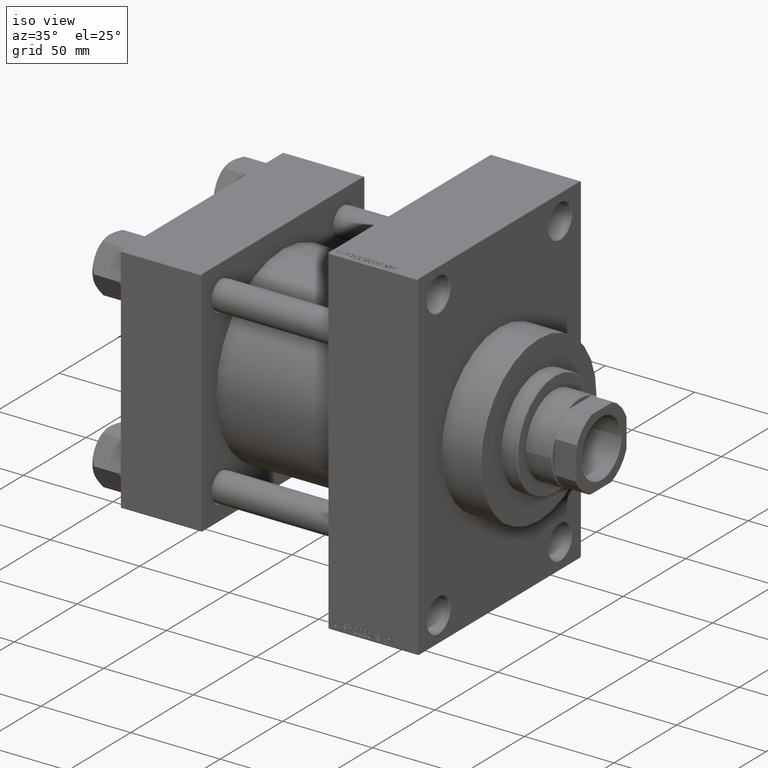
[diagram: clean part render]
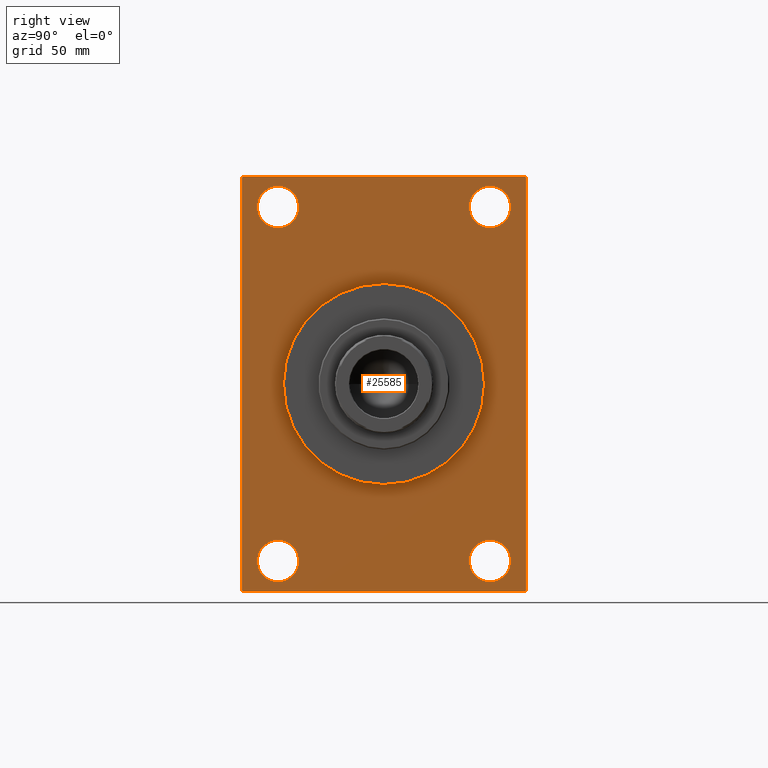
[diagram: tour spotlight — one face highlighted and labeled with its STEP entity id]
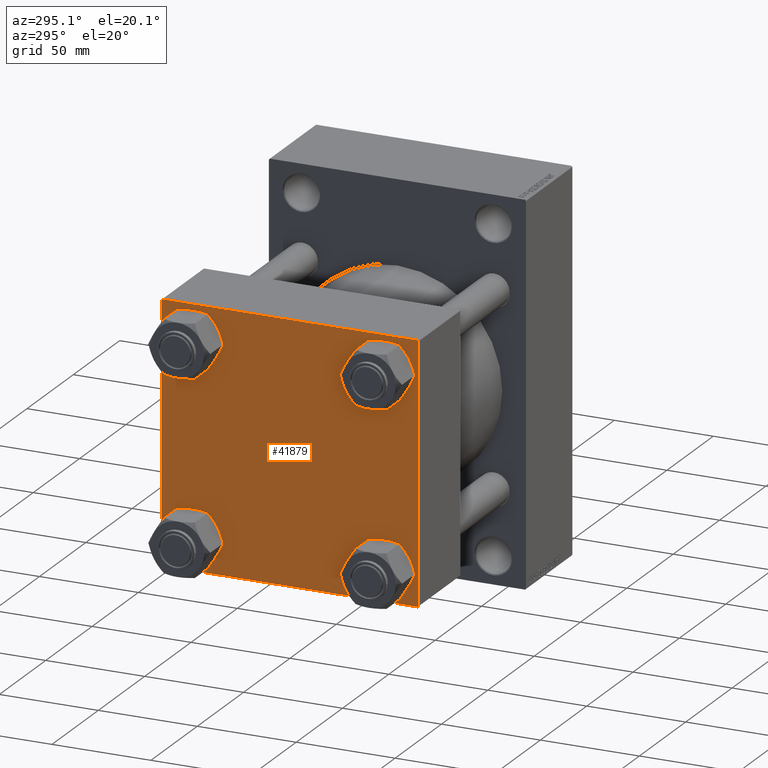
[diagram: tour spotlight — one face highlighted and labeled with its STEP entity id]
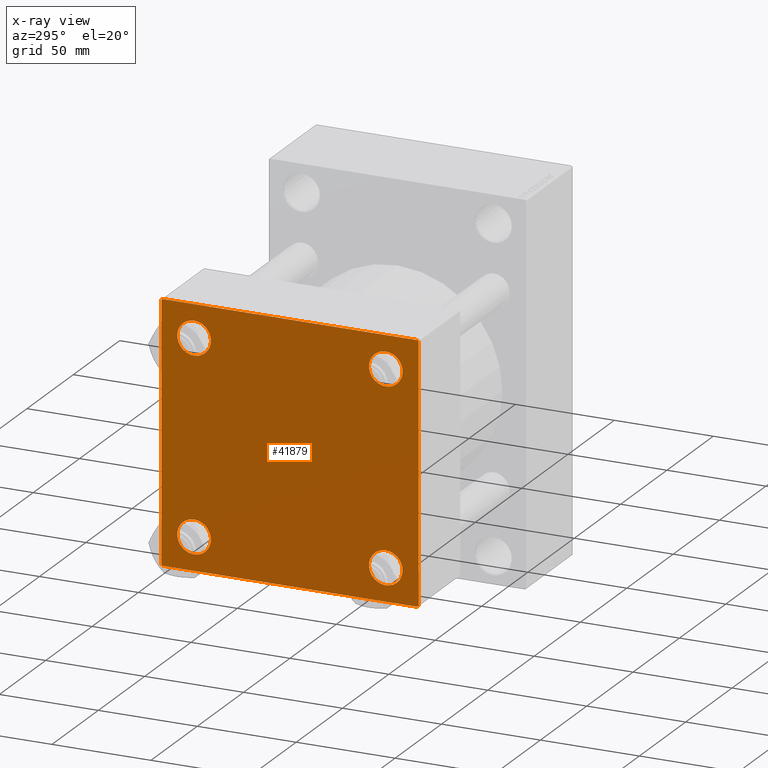
[diagram: x-ray of the same camera — body ghosted, this tour face saturated]
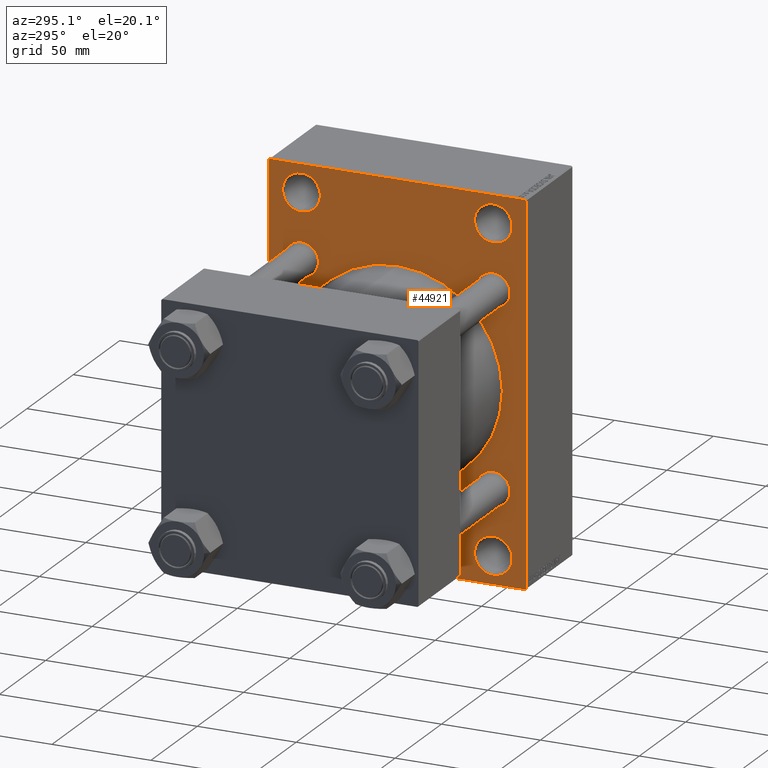
[diagram: tour spotlight — one face highlighted and labeled with its STEP entity id]
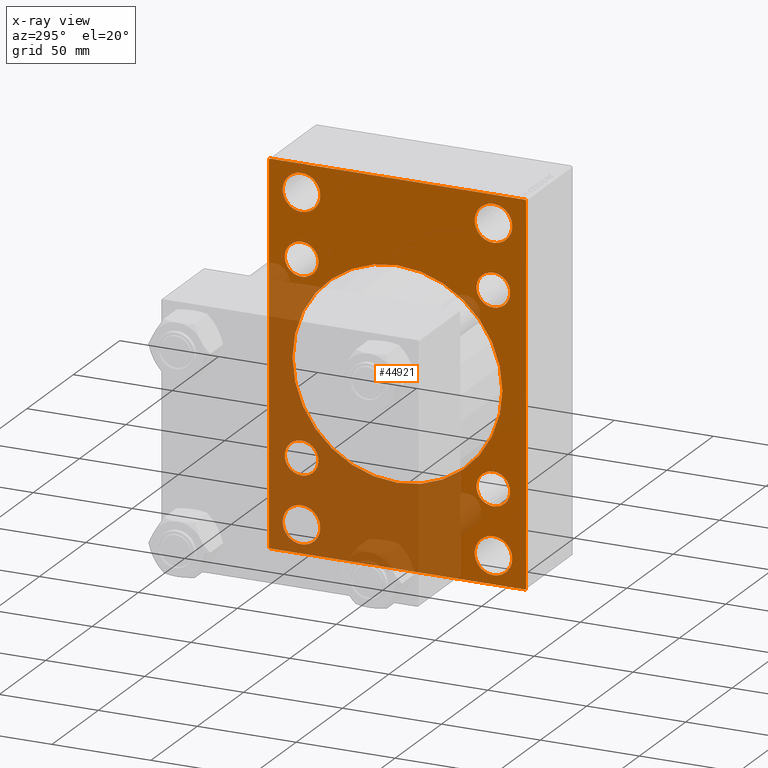
[diagram: x-ray of the same camera — body ghosted, this tour face saturated]
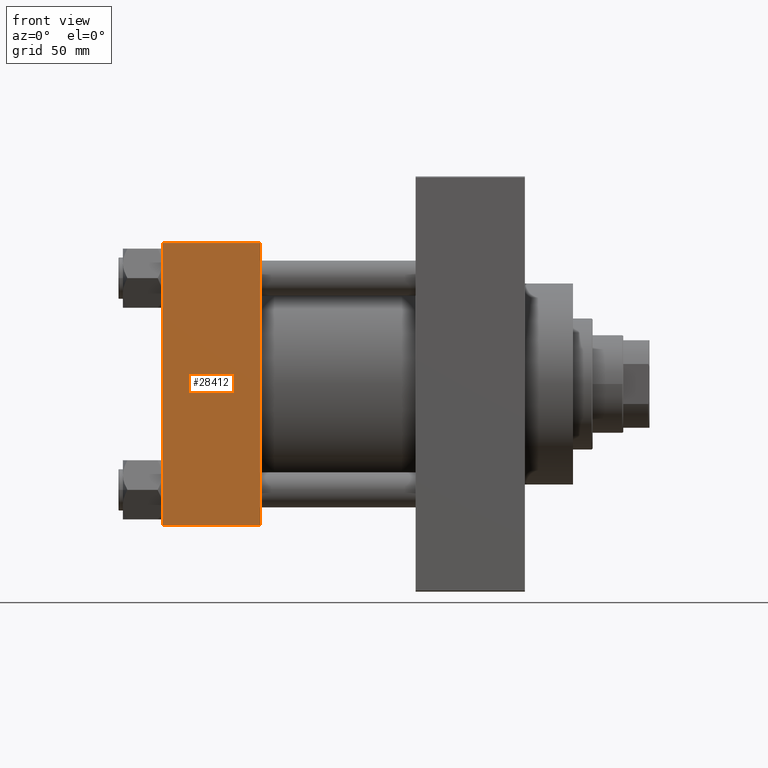
[diagram: tour spotlight — one face highlighted and labeled with its STEP entity id]
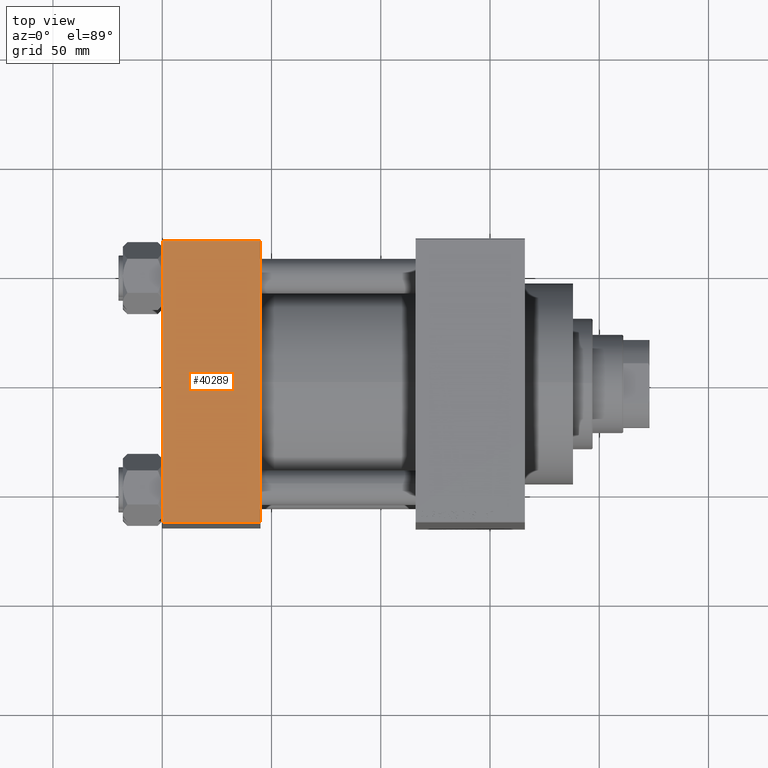
[diagram: tour spotlight — one face highlighted and labeled with its STEP entity id]
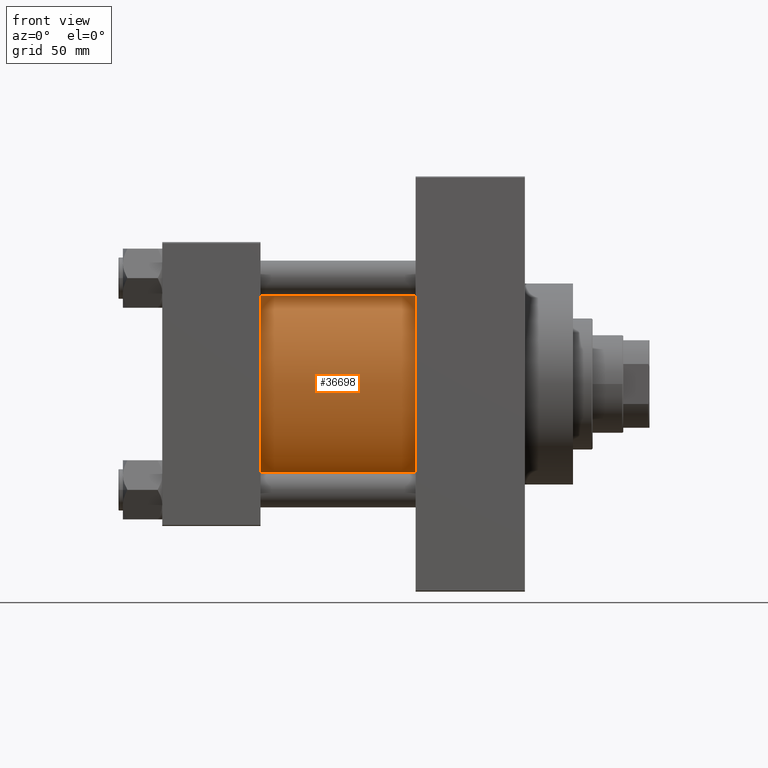
[diagram: tour spotlight — one face highlighted and labeled with its STEP entity id]
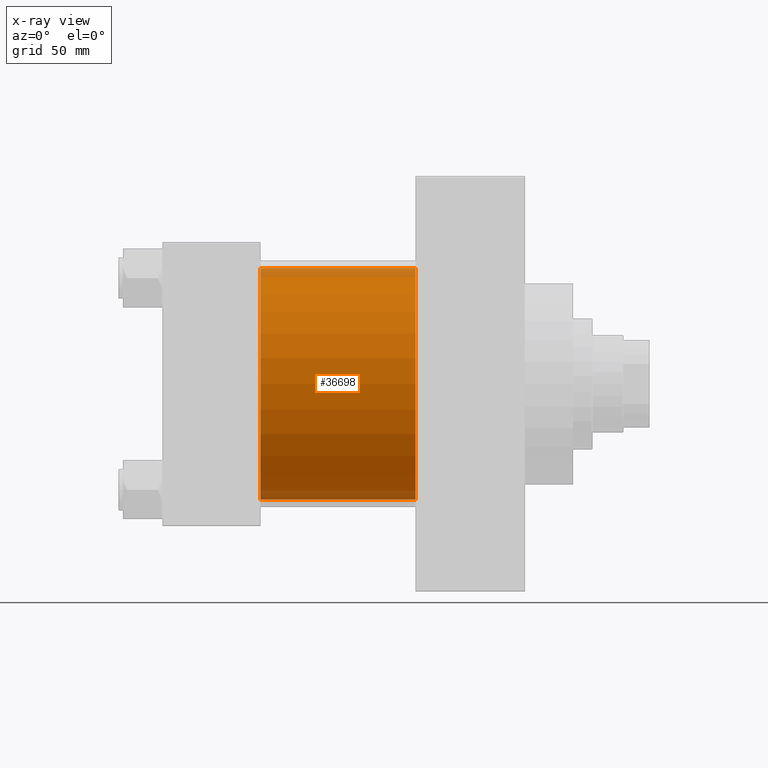
[diagram: x-ray of the same camera — body ghosted, this tour face saturated]
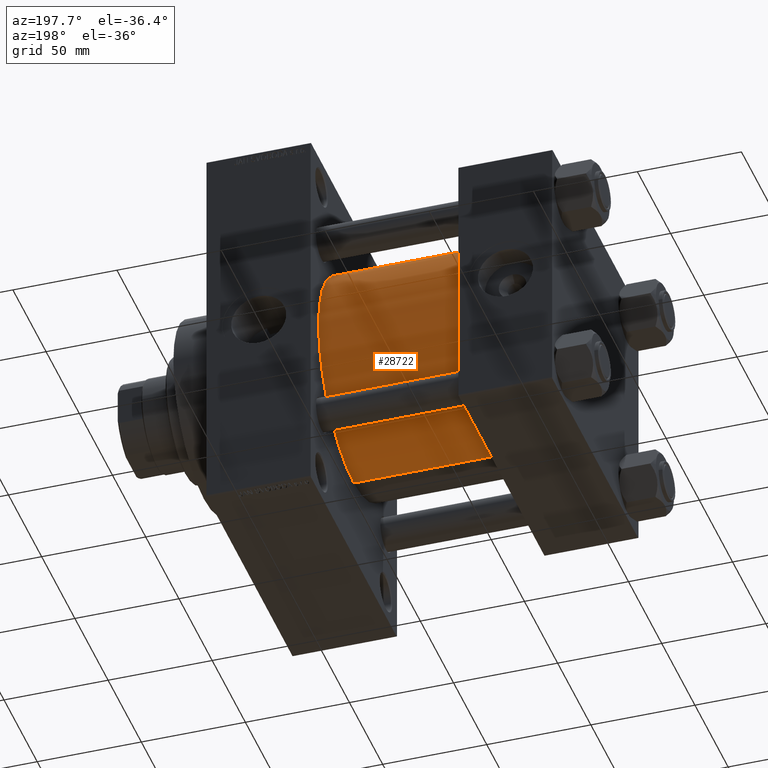
[diagram: tour spotlight — one face highlighted and labeled with its STEP entity id]
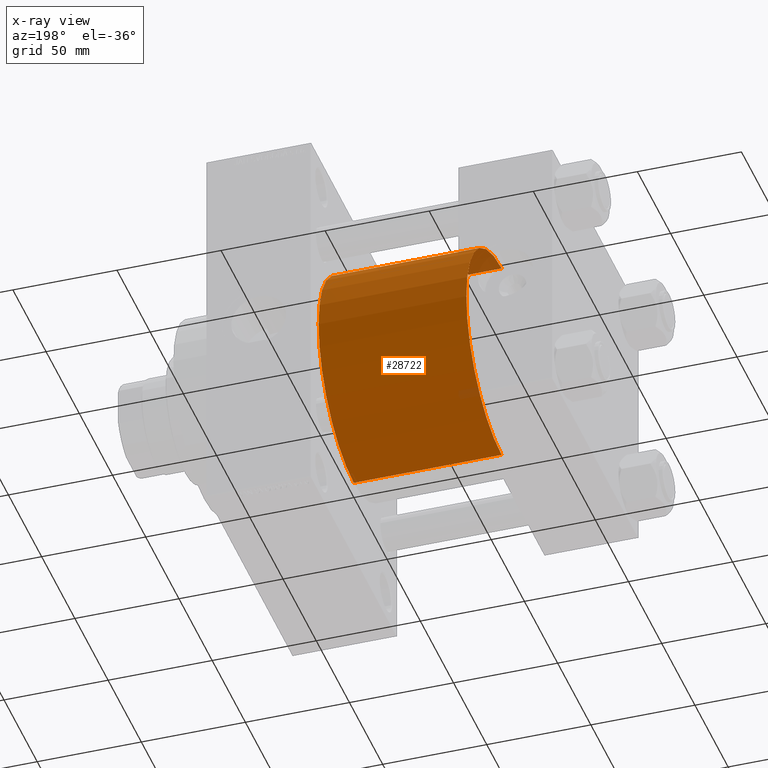
[diagram: x-ray of the same camera — body ghosted, this tour face saturated]
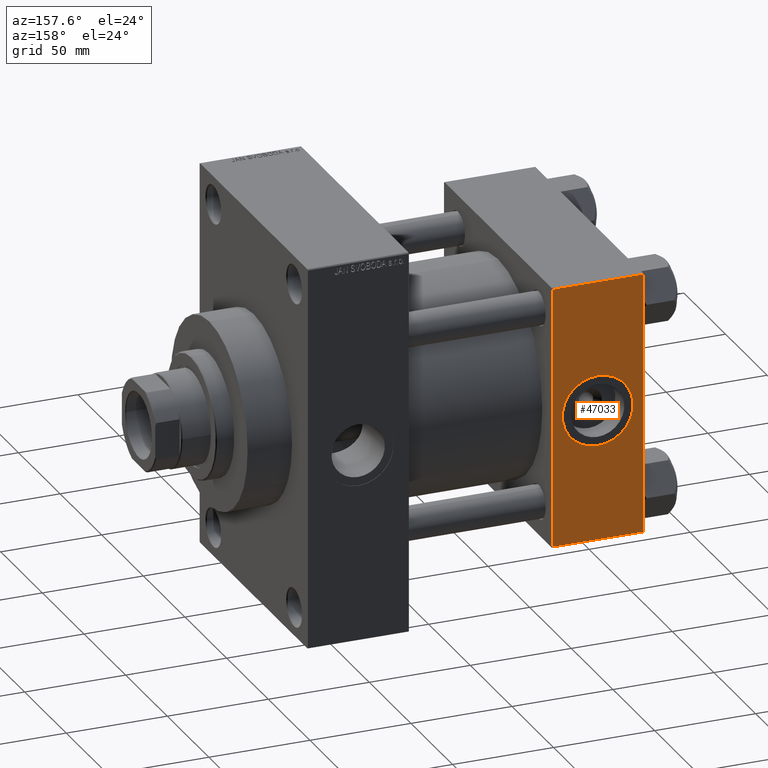
[diagram: tour spotlight — one face highlighted and labeled with its STEP entity id]
A machine part: a face-by-face anatomy tour. The part has 1152 B-rep faces; the first image is the clean iso view, then the 8 largest visible faces are spotlighted one at a time (largest first), each with its STEP entity span.

Face 1 — right view, entity #25585. In plain terms, the highlighted planar face has unit normal (-1, 0, 0).
Definition (entity closure, byte-faithful):
#88 = EDGE_CURVE ( 'NONE', #34553, #34006, #11857, .T. ) ;
#95 = ORIENTED_EDGE ( 'NONE', *, *, #5295, .T. ) ;
#711 = CARTESIAN_POINT ( 'NONE',  ( 165.9999999999999716, -64.50000000000002842, 94.99999999999997158 ) ) ;
#955 = DIRECTION ( 'NONE',  ( -1.000000000000000000, 0.000000000000000000, -0.000000000000000000 ) ) ;
#981 = DIRECTION ( 'NONE',  ( -1.000000000000000000, 0.000000000000000000, -0.000000000000000000 ) ) ;
#1147 = ORIENTED_EDGE ( 'NONE', *, *, #1502, .T. ) ;
#1502 = EDGE_CURVE ( 'NONE', #10934, #21464, #3899, .T. ) ;
#1513 = CARTESIAN_POINT ( 'NONE',  ( 165.9999999999999716, -48.49999999999999289, -81.00000000000001421 ) ) ;
#1711 = CARTESIAN_POINT ( 'NONE',  ( 165.9999999999999716, -65.00000000000001421, 94.49999999999997158 ) ) ;
#1908 = VERTEX_POINT ( 'NONE', #8160 ) ;
#2238 = CARTESIAN_POINT ( 'NONE',  ( 165.9999999999999716, -65.00000000000001421, -94.50000000000002842 ) ) ;
#2491 = FACE_BOUND ( 'NONE', #23513, .T. ) ;
#2520 = ORIENTED_EDGE ( 'NONE', *, *, #40611, .F. ) ;
#2609 = VERTEX_POINT ( 'NONE', #38890 ) ;
#2731 = DIRECTION ( 'NONE',  ( -0.000000000000000000, 0.7071067811865573427, 0.7071067811865378028 ) ) ;
#3073 = DIRECTION ( 'NONE',  ( 1.000000000000000000, 0.000000000000000000, 0.000000000000000000 ) ) ;
#3127 = VERTEX_POINT ( 'NONE', #2238 ) ;
#3593 = CIRCLE ( 'NONE', #11339, 9.500000000000063949 ) ;
#3899 = LINE ( 'NONE', #18602, #32669 ) ;
#4193 = EDGE_CURVE ( 'NONE', #42168, #47327, #23575, .T. ) ;
#4531 = AXIS2_PLACEMENT_3D ( 'NONE', #39790, #32546, #47255 ) ;
#5119 = DIRECTION ( 'NONE',  ( 0.000000000000000000, 0.000000000000000000, 1.000000000000000000 ) ) ;
#5295 = EDGE_CURVE ( 'NONE', #19798, #46957, #26887, .T. ) ;
#5446 = EDGE_CURVE ( 'NONE', #36640, #25618, #14280, .T. ) ;
#5709 = ORIENTED_EDGE ( 'NONE', *, *, #27113, .T. ) ;
#5920 = CARTESIAN_POINT ( 'NONE',  ( 165.9999999999999716, -64.50000000000001421, -95.00000000000002842 ) ) ;
#6737 = ORIENTED_EDGE ( 'NONE', *, *, #5446, .T. ) ;
#7107 = EDGE_CURVE ( 'NONE', #36640, #11937, #32504, .T. ) ;
#7383 = ORIENTED_EDGE ( 'NONE', *, *, #4193, .T. ) ;
#7713 = CARTESIAN_POINT ( 'NONE',  ( 165.9999999999999716, 48.50000000000000711, 81.00000000000000000 ) ) ;
#7810 = DIRECTION ( 'NONE',  ( 0.000000000000000000, 0.000000000000000000, 1.000000000000000000 ) ) ;
#7816 = ORIENTED_EDGE ( 'NONE', *, *, #21992, .F. ) ;
#7822 = DIRECTION ( 'NONE',  ( -0.000000000000000000, -0.7071067811865378028, -0.7071067811865573427 ) ) ;
#8131 = EDGE_CURVE ( 'NONE', #3127, #11937, #32046, .T. ) ;
#8160 = CARTESIAN_POINT ( 'NONE',  ( 165.9999999999999716, 48.50000000000000711, 71.49999999999994316 ) ) ;
#8289 = CARTESIAN_POINT ( 'NONE',  ( 165.9999999999999716, -48.50000000000000000, 71.49999999999994316 ) ) ;
#8540 = CARTESIAN_POINT ( 'NONE',  ( 165.9999999999999716, -65.00000000000001421, 94.49999999999997158 ) ) ;
#10111 = CARTESIAN_POINT ( 'NONE',  ( 165.9999999999999716, 64.99999999999997158, 94.99999999999997158 ) ) ;
#10390 = VECTOR ( 'NONE', #30547, 1000.000000000000000 ) ;
#10489 = AXIS2_PLACEMENT_3D ( 'NONE', #30954, #12620, #12865 ) ;
#10669 = CIRCLE ( 'NONE', #43789, 9.500000000000063949 ) ;
#10934 = VERTEX_POINT ( 'NONE', #33527 ) ;
#11083 = ORIENTED_EDGE ( 'NONE', *, *, #17266, .F. ) ;
#11339 = AXIS2_PLACEMENT_3D ( 'NONE', #7713, #11810, #37145 ) ;
#11742 = CARTESIAN_POINT ( 'NONE',  ( 165.9999999999999716, -65.00000000000001421, 94.99999999999997158 ) ) ;
#11810 = DIRECTION ( 'NONE',  ( -1.000000000000000000, 0.000000000000000000, -0.000000000000000000 ) ) ;
#11857 = CIRCLE ( 'NONE', #21113, 9.500000000000063949 ) ;
#11937 = VERTEX_POINT ( 'NONE', #5920 ) ;
#12004 = AXIS2_PLACEMENT_3D ( 'NONE', #15040, #30004, #7810 ) ;
#12205 = EDGE_CURVE ( 'NONE', #21464, #19798, #41580, .T. ) ;
#12237 = ORIENTED_EDGE ( 'NONE', *, *, #7107, .F. ) ;
#12620 = DIRECTION ( 'NONE',  ( -1.000000000000000000, 0.000000000000000000, -0.000000000000000000 ) ) ;
#12865 = DIRECTION ( 'NONE',  ( -0.000000000000000000, 0.000000000000000000, 1.000000000000000000 ) ) ;
#13337 = FACE_BOUND ( 'NONE', #24739, .T. ) ;
#13731 = DIRECTION ( 'NONE',  ( 0.000000000000000000, 0.7071067811865474617, -0.7071067811865474617 ) ) ;
#13922 = CARTESIAN_POINT ( 'NONE',  ( 165.9999999999999716, 0.000000000000000000, 0.000000000000000000 ) ) ;
#14280 = LINE ( 'NONE', #36467, #45938 ) ;
#14452 = CIRCLE ( 'NONE', #39083, 9.500000000000063949 ) ;
#14593 = ORIENTED_EDGE ( 'NONE', *, *, #88, .T. ) ;
#14633 = CARTESIAN_POINT ( 'NONE',  ( 165.9999999999999716, 48.50000000000000711, -71.49999999999995737 ) ) ;
#14699 = VERTEX_POINT ( 'NONE', #29228 ) ;
#15040 = CARTESIAN_POINT ( 'NONE',  ( 165.9999999999999716, -48.49999999999999289, -81.00000000000001421 ) ) ;
#15353 = LINE ( 'NONE', #11742, #10390 ) ;
#15674 = CARTESIAN_POINT ( 'NONE',  ( 165.9999999999999716, 64.49999999999998579, -95.00000000000001421 ) ) ;
#15752 = CARTESIAN_POINT ( 'NONE',  ( 165.9999999999999716, 48.50000000000000711, 90.50000000000007105 ) ) ;
#15913 = DIRECTION ( 'NONE',  ( 0.000000000000000000, 0.000000000000000000, 1.000000000000000000 ) ) ;
#16246 = CARTESIAN_POINT ( 'NONE',  ( 165.9999999999999716, 48.50000000000000711, -90.50000000000008527 ) ) ;
#16480 = ORIENTED_EDGE ( 'NONE', *, *, #12205, .T. ) ;
#17083 = VERTEX_POINT ( 'NONE', #15752 ) ;
#17134 = VERTEX_POINT ( 'NONE', #42745 ) ;
#17266 = EDGE_CURVE ( 'NONE', #10934, #25618, #39770, .T. ) ;
#17388 = VECTOR ( 'NONE', #43609, 1000.000000000000000 ) ;
#17586 = DIRECTION ( 'NONE',  ( 0.000000000000000000, 7.304098846218135653E-17, -1.000000000000000000 ) ) ;
#18184 = VECTOR ( 'NONE', #7822, 1000.000000000000000 ) ;
#18437 = CARTESIAN_POINT ( 'NONE',  ( 165.9999999999999716, 64.49999999999997158, 94.99999999999997158 ) ) ;
#18602 = CARTESIAN_POINT ( 'NONE',  ( 165.9999999999999716, 64.49999999999997158, 94.99999999999997158 ) ) ;
#18840 = DIRECTION ( 'NONE',  ( 0.000000000000000000, -0.7071067811865474617, 0.7071067811865474617 ) ) ;
#18992 = EDGE_CURVE ( 'NONE', #46957, #3127, #15353, .T. ) ;
#18993 = AXIS2_PLACEMENT_3D ( 'NONE', #13922, #3073, #28637 ) ;
#19798 = VERTEX_POINT ( 'NONE', #711 ) ;
#19915 = CIRCLE ( 'NONE', #28380, 9.500000000000063949 ) ;
#20585 = CARTESIAN_POINT ( 'NONE',  ( 165.9999999999999716, 64.99999999999998579, -94.50000000000002842 ) ) ;
#21113 = AXIS2_PLACEMENT_3D ( 'NONE', #26779, #981, #15913 ) ;
#21464 = VERTEX_POINT ( 'NONE', #18437 ) ;
#21663 = CARTESIAN_POINT ( 'NONE',  ( 165.9999999999999716, 64.99999999999998579, -95.00000000000001421 ) ) ;
#21992 = EDGE_CURVE ( 'NONE', #2609, #17134, #32847, .T. ) ;
#22518 = EDGE_CURVE ( 'NONE', #43683, #14699, #46688, .T. ) ;
#22942 = CARTESIAN_POINT ( 'NONE',  ( 165.9999999999999716, -48.50000000000000000, 81.00000000000000000 ) ) ;
#23400 = DIRECTION ( 'NONE',  ( 0.000000000000000000, 0.000000000000000000, 1.000000000000000000 ) ) ;
#23470 = VECTOR ( 'NONE', #17586, 1000.000000000000000 ) ;
#23513 = EDGE_LOOP ( 'NONE', ( #37123, #7383 ) ) ;
#23575 = CIRCLE ( 'NONE', #12004, 9.500000000000063949 ) ;
#23726 = FACE_BOUND ( 'NONE', #29053, .T. ) ;
#24173 = EDGE_LOOP ( 'NONE', ( #5709, #30195 ) ) ;
#24667 = CARTESIAN_POINT ( 'NONE',  ( 165.9999999999999716, -48.50000000000000000, 81.00000000000000000 ) ) ;
#24739 = EDGE_LOOP ( 'NONE', ( #14593, #27096 ) ) ;
#25134 = DIRECTION ( 'NONE',  ( 0.000000000000000000, 0.000000000000000000, 1.000000000000000000 ) ) ;
#25346 = DIRECTION ( 'NONE',  ( 1.000000000000000000, 0.000000000000000000, 0.000000000000000000 ) ) ;
#25585 = ADVANCED_FACE ( 'NONE', ( #34574, #2491, #13337, #31664, #23726, #45907 ), #35290, .F. ) ;
#25618 = VERTEX_POINT ( 'NONE', #20585 ) ;
#26146 = ORIENTED_EDGE ( 'NONE', *, *, #8131, .T. ) ;
#26389 = CARTESIAN_POINT ( 'NONE',  ( 165.9999999999999716, 64.99999999999997158, 94.99999999999997158 ) ) ;
#26779 = CARTESIAN_POINT ( 'NONE',  ( 165.9999999999999716, 48.50000000000000711, -81.00000000000001421 ) ) ;
#26887 = LINE ( 'NONE', #8540, #18184 ) ;
#26903 = ORIENTED_EDGE ( 'NONE', *, *, #22518, .T. ) ;
#27096 = ORIENTED_EDGE ( 'NONE', *, *, #44195, .T. ) ;
#27113 = EDGE_CURVE ( 'NONE', #1908, #17083, #3593, .T. ) ;
#27983 = CARTESIAN_POINT ( 'NONE',  ( 165.9999999999999716, -64.50000000000001421, -95.00000000000002842 ) ) ;
#28380 = AXIS2_PLACEMENT_3D ( 'NONE', #33494, #955, #33978 ) ;
#28637 = DIRECTION ( 'NONE',  ( 0.000000000000000000, 0.000000000000000000, -1.000000000000000000 ) ) ;
#28952 = EDGE_CURVE ( 'NONE', #14699, #43683, #14452, .T. ) ;
#28954 = CARTESIAN_POINT ( 'NONE',  ( 165.9999999999999716, 0.000000000000000000, 0.000000000000000000 ) ) ;
#29028 = ORIENTED_EDGE ( 'NONE', *, *, #28952, .T. ) ;
#29053 = EDGE_LOOP ( 'NONE', ( #2520, #7816 ) ) ;
#29228 = CARTESIAN_POINT ( 'NONE',  ( 165.9999999999999716, -48.50000000000000000, 90.50000000000007105 ) ) ;
#30004 = DIRECTION ( 'NONE',  ( -1.000000000000000000, 0.000000000000000000, -0.000000000000000000 ) ) ;
#30184 = EDGE_CURVE ( 'NONE', #47327, #42168, #10669, .T. ) ;
#30195 = ORIENTED_EDGE ( 'NONE', *, *, #30393, .T. ) ;
#30393 = EDGE_CURVE ( 'NONE', #17083, #1908, #39930, .T. ) ;
#30547 = DIRECTION ( 'NONE',  ( 0.000000000000000000, 0.000000000000000000, -1.000000000000000000 ) ) ;
#30900 = EDGE_LOOP ( 'NONE', ( #26903, #29028 ) ) ;
#30954 = CARTESIAN_POINT ( 'NONE',  ( 165.9999999999999716, 0.000000000000000000, 0.000000000000000000 ) ) ;
#31045 = CARTESIAN_POINT ( 'NONE',  ( 165.9999999999999716, -48.49999999999999289, -71.49999999999995737 ) ) ;
#31617 = DIRECTION ( 'NONE',  ( -1.000000000000000000, 0.000000000000000000, -0.000000000000000000 ) ) ;
#31664 = FACE_BOUND ( 'NONE', #24173, .T. ) ;
#32046 = LINE ( 'NONE', #27983, #40532 ) ;
#32504 = LINE ( 'NONE', #21663, #17388 ) ;
#32546 = DIRECTION ( 'NONE',  ( -1.000000000000000000, 0.000000000000000000, -0.000000000000000000 ) ) ;
#32669 = VECTOR ( 'NONE', #18840, 1000.000000000000114 ) ;
#32847 = CIRCLE ( 'NONE', #18993, 46.00000000000000000 ) ;
#33494 = CARTESIAN_POINT ( 'NONE',  ( 165.9999999999999716, 48.50000000000000711, -81.00000000000001421 ) ) ;
#33527 = CARTESIAN_POINT ( 'NONE',  ( 165.9999999999999716, 64.99999999999997158, 94.49999999999997158 ) ) ;
#33978 = DIRECTION ( 'NONE',  ( 0.000000000000000000, 0.000000000000000000, 1.000000000000000000 ) ) ;
#34006 = VERTEX_POINT ( 'NONE', #14633 ) ;
#34553 = VERTEX_POINT ( 'NONE', #16246 ) ;
#34574 = FACE_BOUND ( 'NONE', #30900, .T. ) ;
#35290 = PLANE ( 'NONE',  #10489 ) ;
#35948 = AXIS2_PLACEMENT_3D ( 'NONE', #28954, #25346, #46817 ) ;
#36456 = DIRECTION ( 'NONE',  ( -1.000000000000000000, 0.000000000000000000, -0.000000000000000000 ) ) ;
#36467 = CARTESIAN_POINT ( 'NONE',  ( 165.9999999999999716, 64.99999999999998579, -94.50000000000002842 ) ) ;
#36640 = VERTEX_POINT ( 'NONE', #15674 ) ;
#37123 = ORIENTED_EDGE ( 'NONE', *, *, #30184, .T. ) ;
#37145 = DIRECTION ( 'NONE',  ( 0.000000000000000000, 0.000000000000000000, 1.000000000000000000 ) ) ;
#37934 = VECTOR ( 'NONE', #41095, 1000.000000000000000 ) ;
#38021 = EDGE_LOOP ( 'NONE', ( #42544, #26146, #12237, #6737, #11083, #1147, #16480, #95 ) ) ;
#38104 = DIRECTION ( 'NONE',  ( -1.000000000000000000, 0.000000000000000000, -0.000000000000000000 ) ) ;
#38890 = CARTESIAN_POINT ( 'NONE',  ( 165.9999999999999716, 5.633375276077824704E-15, -46.00000000000000000 ) ) ;
#39083 = AXIS2_PLACEMENT_3D ( 'NONE', #24667, #36456, #25134 ) ;
#39770 = LINE ( 'NONE', #10111, #23470 ) ;
#39790 = CARTESIAN_POINT ( 'NONE',  ( 165.9999999999999716, 48.50000000000000711, 81.00000000000000000 ) ) ;
#39930 = CIRCLE ( 'NONE', #4531, 9.500000000000063949 ) ;
#40532 = VECTOR ( 'NONE', #13731, 1000.000000000000114 ) ;
#40611 = EDGE_CURVE ( 'NONE', #17134, #2609, #45977, .T. ) ;
#41095 = DIRECTION ( 'NONE',  ( 0.000000000000000000, -1.000000000000000000, 0.000000000000000000 ) ) ;
#41580 = LINE ( 'NONE', #26389, #37934 ) ;
#42168 = VERTEX_POINT ( 'NONE', #31045 ) ;
#42544 = ORIENTED_EDGE ( 'NONE', *, *, #18992, .T. ) ;
#42745 = CARTESIAN_POINT ( 'NONE',  ( 165.9999999999999716, 0.000000000000000000, 46.00000000000000000 ) ) ;
#43609 = DIRECTION ( 'NONE',  ( 0.000000000000000000, -1.000000000000000000, -1.067522139062650425E-16 ) ) ;
#43683 = VERTEX_POINT ( 'NONE', #8289 ) ;
#43789 = AXIS2_PLACEMENT_3D ( 'NONE', #1513, #31617, #5119 ) ;
#44195 = EDGE_CURVE ( 'NONE', #34006, #34553, #19915, .T. ) ;
#44390 = AXIS2_PLACEMENT_3D ( 'NONE', #22942, #38104, #23400 ) ;
#45907 = FACE_OUTER_BOUND ( 'NONE', #38021, .T. ) ;
#45938 = VECTOR ( 'NONE', #2731, 1000.000000000000000 ) ;
#45977 = CIRCLE ( 'NONE', #35948, 46.00000000000000000 ) ;
#46002 = CARTESIAN_POINT ( 'NONE',  ( 165.9999999999999716, -48.49999999999999289, -90.50000000000008527 ) ) ;
#46688 = CIRCLE ( 'NONE', #44390, 9.500000000000063949 ) ;
#46817 = DIRECTION ( 'NONE',  ( 0.000000000000000000, 0.000000000000000000, -1.000000000000000000 ) ) ;
#46957 = VERTEX_POINT ( 'NONE', #1711 ) ;
#47255 = DIRECTION ( 'NONE',  ( 0.000000000000000000, 0.000000000000000000, 1.000000000000000000 ) ) ;
#47327 = VERTEX_POINT ( 'NONE', #46002 ) ;

Face 2 — auxiliary view, entity #41879. An x-ray twin of the same camera follows (body ghosted, this face saturated) — the face is partly hidden behind the body. In plain terms, the highlighted planar face has unit normal (-1, 0, 0).
Definition (entity closure, byte-faithful):
#122 = ORIENTED_EDGE ( 'NONE', *, *, #23657, .F. ) ;
#156 = CARTESIAN_POINT ( 'NONE',  ( 0.000000000000000000, -48.44999999999999574, -56.95000000000003837 ) ) ;
#199 = AXIS2_PLACEMENT_3D ( 'NONE', #9330, #46461, #13658 ) ;
#328 = EDGE_LOOP ( 'NONE', ( #9822, #27246 ) ) ;
#412 = DIRECTION ( 'NONE',  ( 1.000000000000000000, -0.000000000000000000, 0.000000000000000000 ) ) ;
#581 = FACE_OUTER_BOUND ( 'NONE', #38716, .T. ) ;
#967 = VERTEX_POINT ( 'NONE', #10570 ) ;
#1126 = VERTEX_POINT ( 'NONE', #20675 ) ;
#1240 = AXIS2_PLACEMENT_3D ( 'NONE', #19678, #18971, #45000 ) ;
#2139 = ORIENTED_EDGE ( 'NONE', *, *, #7952, .T. ) ;
#2575 = ORIENTED_EDGE ( 'NONE', *, *, #28488, .T. ) ;
#3348 = DIRECTION ( 'NONE',  ( 0.000000000000000000, 0.7071067811865474617, -0.7071067811865474617 ) ) ;
#4324 = CIRCLE ( 'NONE', #1240, 8.500000000000007105 ) ;
#4874 = VERTEX_POINT ( 'NONE', #41530 ) ;
#4893 = EDGE_CURVE ( 'NONE', #38133, #6228, #31305, .T. ) ;
#4915 = DIRECTION ( 'NONE',  ( 0.000000000000000000, 0.000000000000000000, 1.000000000000000000 ) ) ;
#5254 = CARTESIAN_POINT ( 'NONE',  ( 0.000000000000000000, -65.00000000000000000, 64.50000000000000000 ) ) ;
#6228 = VERTEX_POINT ( 'NONE', #6699 ) ;
#6443 = DIRECTION ( 'NONE',  ( 1.000000000000000000, -0.000000000000000000, 0.000000000000000000 ) ) ;
#6543 = EDGE_LOOP ( 'NONE', ( #38751, #30762 ) ) ;
#6699 = CARTESIAN_POINT ( 'NONE',  ( 0.000000000000000000, 48.45000000000000995, 56.95000000000002416 ) ) ;
#7475 = AXIS2_PLACEMENT_3D ( 'NONE', #8027, #15268, #23237 ) ;
#7774 = DIRECTION ( 'NONE',  ( -0.000000000000000000, 0.7071067811865672237, 0.7071067811865279218 ) ) ;
#7784 = AXIS2_PLACEMENT_3D ( 'NONE', #37159, #18827, #33529 ) ;
#7823 = LINE ( 'NONE', #22547, #29128 ) ;
#7896 = CARTESIAN_POINT ( 'NONE',  ( 0.000000000000000000, 48.45000000000000995, -56.95000000000002416 ) ) ;
#7952 = EDGE_CURVE ( 'NONE', #967, #27016, #15688, .T. ) ;
#8027 = CARTESIAN_POINT ( 'NONE',  ( 0.000000000000000000, 0.000000000000000000, 0.000000000000000000 ) ) ;
#8385 = CARTESIAN_POINT ( 'NONE',  ( 0.000000000000000000, -48.44999999999999574, 48.45000000000003126 ) ) ;
#8511 = PLANE ( 'NONE',  #7475 ) ;
#8964 = VECTOR ( 'NONE', #18207, 1000.000000000000114 ) ;
#9330 = CARTESIAN_POINT ( 'NONE',  ( 0.000000000000000000, -48.44999999999999574, 48.45000000000003126 ) ) ;
#9479 = EDGE_CURVE ( 'NONE', #41156, #4874, #15003, .T. ) ;
#9822 = ORIENTED_EDGE ( 'NONE', *, *, #11482, .T. ) ;
#9998 = VERTEX_POINT ( 'NONE', #46279 ) ;
#10570 = CARTESIAN_POINT ( 'NONE',  ( 0.000000000000000000, 65.00000000000000000, 64.49999999999998579 ) ) ;
#11131 = CARTESIAN_POINT ( 'NONE',  ( 0.000000000000000000, 64.49999999999997158, 65.00000000000001421 ) ) ;
#11169 = AXIS2_PLACEMENT_3D ( 'NONE', #44944, #37953, #4915 ) ;
#11232 = EDGE_CURVE ( 'NONE', #22095, #45481, #32458, .T. ) ;
#11375 = CIRCLE ( 'NONE', #44488, 8.500000000000007105 ) ;
#11482 = EDGE_CURVE ( 'NONE', #45481, #22095, #40987, .T. ) ;
#11696 = AXIS2_PLACEMENT_3D ( 'NONE', #8385, #12245, #34187 ) ;
#11820 = CARTESIAN_POINT ( 'NONE',  ( 0.000000000000000000, -65.00000000000000000, 65.00000000000000000 ) ) ;
#12085 = DIRECTION ( 'NONE',  ( 0.000000000000000000, 0.000000000000000000, -1.000000000000000000 ) ) ;
#12245 = DIRECTION ( 'NONE',  ( 1.000000000000000000, -0.000000000000000000, 0.000000000000000000 ) ) ;
#13658 = DIRECTION ( 'NONE',  ( 0.000000000000000000, 0.000000000000000000, 1.000000000000000000 ) ) ;
#14182 = CARTESIAN_POINT ( 'NONE',  ( 0.000000000000000000, 48.45000000000000995, 39.95000000000000284 ) ) ;
#14345 = EDGE_CURVE ( 'NONE', #9998, #37979, #26127, .T. ) ;
#15003 = LINE ( 'NONE', #18636, #16299 ) ;
#15268 = DIRECTION ( 'NONE',  ( -1.000000000000000000, 0.000000000000000000, -0.000000000000000000 ) ) ;
#15688 = LINE ( 'NONE', #41264, #42045 ) ;
#15866 = DIRECTION ( 'NONE',  ( 0.000000000000000000, -1.000000000000000000, -1.067522139062650425E-16 ) ) ;
#16299 = VECTOR ( 'NONE', #7774, 1000.000000000000000 ) ;
#17917 = CARTESIAN_POINT ( 'NONE',  ( 0.000000000000000000, 65.00000000000000000, -64.99999999999998579 ) ) ;
#18207 = DIRECTION ( 'NONE',  ( -0.000000000000000000, -0.7071067811865474617, -0.7071067811865474617 ) ) ;
#18345 = EDGE_CURVE ( 'NONE', #6228, #38133, #27360, .T. ) ;
#18636 = CARTESIAN_POINT ( 'NONE',  ( -0.000000000000000000, -64.74999999999819522, 64.75000000000179057 ) ) ;
#18827 = DIRECTION ( 'NONE',  ( 1.000000000000000000, -0.000000000000000000, 0.000000000000000000 ) ) ;
#18971 = DIRECTION ( 'NONE',  ( 1.000000000000000000, -0.000000000000000000, 0.000000000000000000 ) ) ;
#19678 = CARTESIAN_POINT ( 'NONE',  ( 0.000000000000000000, -48.44999999999999574, -48.45000000000003126 ) ) ;
#19728 = EDGE_CURVE ( 'NONE', #43948, #967, #28910, .T. ) ;
#19780 = CIRCLE ( 'NONE', #40565, 8.500000000000007105 ) ;
#19872 = ORIENTED_EDGE ( 'NONE', *, *, #36691, .T. ) ;
#20675 = CARTESIAN_POINT ( 'NONE',  ( 0.000000000000000000, -65.00000000000000000, -64.49999999999991473 ) ) ;
#20697 = EDGE_LOOP ( 'NONE', ( #2575, #39445 ) ) ;
#20877 = ORIENTED_EDGE ( 'NONE', *, *, #14345, .T. ) ;
#21461 = ORIENTED_EDGE ( 'NONE', *, *, #22120, .T. ) ;
#21796 = VECTOR ( 'NONE', #40834, 1000.000000000000000 ) ;
#22095 = VERTEX_POINT ( 'NONE', #30307 ) ;
#22120 = EDGE_CURVE ( 'NONE', #27016, #9998, #24260, .T. ) ;
#22547 = CARTESIAN_POINT ( 'NONE',  ( 0.000000000000000000, -64.75000000000176215, -64.74999999999816680 ) ) ;
#23237 = DIRECTION ( 'NONE',  ( -0.000000000000000000, 0.000000000000000000, 1.000000000000000000 ) ) ;
#23522 = VERTEX_POINT ( 'NONE', #47469 ) ;
#23657 = EDGE_CURVE ( 'NONE', #43948, #4874, #31046, .T. ) ;
#24260 = LINE ( 'NONE', #33155, #8964 ) ;
#24322 = EDGE_LOOP ( 'NONE', ( #19872, #26264 ) ) ;
#24376 = DIRECTION ( 'NONE',  ( 1.000000000000000000, -0.000000000000000000, 0.000000000000000000 ) ) ;
#24779 = EDGE_CURVE ( 'NONE', #42350, #23522, #4324, .T. ) ;
#25302 = CARTESIAN_POINT ( 'NONE',  ( 0.000000000000000000, 64.74999999999998579, 64.74999999999998579 ) ) ;
#26127 = LINE ( 'NONE', #17917, #21796 ) ;
#26264 = ORIENTED_EDGE ( 'NONE', *, *, #26369, .T. ) ;
#26369 = EDGE_CURVE ( 'NONE', #36051, #38217, #19780, .T. ) ;
#27004 = ORIENTED_EDGE ( 'NONE', *, *, #40826, .F. ) ;
#27016 = VERTEX_POINT ( 'NONE', #32318 ) ;
#27246 = ORIENTED_EDGE ( 'NONE', *, *, #11232, .T. ) ;
#27360 = CIRCLE ( 'NONE', #11169, 8.500000000000007105 ) ;
#28142 = ORIENTED_EDGE ( 'NONE', *, *, #29672, .T. ) ;
#28488 = EDGE_CURVE ( 'NONE', #23522, #42350, #11375, .T. ) ;
#28910 = LINE ( 'NONE', #25302, #35836 ) ;
#29128 = VECTOR ( 'NONE', #30729, 1000.000000000000000 ) ;
#29586 = CARTESIAN_POINT ( 'NONE',  ( 0.000000000000000000, 48.45000000000000995, 48.45000000000001705 ) ) ;
#29672 = EDGE_CURVE ( 'NONE', #37979, #1126, #7823, .T. ) ;
#29756 = AXIS2_PLACEMENT_3D ( 'NONE', #29586, #24376, #31831 ) ;
#30218 = FACE_BOUND ( 'NONE', #6543, .T. ) ;
#30307 = CARTESIAN_POINT ( 'NONE',  ( 0.000000000000000000, -48.44999999999999574, 39.95000000000001705 ) ) ;
#30575 = ORIENTED_EDGE ( 'NONE', *, *, #19728, .T. ) ;
#30729 = DIRECTION ( 'NONE',  ( 0.000000000000000000, -0.7071067811865279218, 0.7071067811865671127 ) ) ;
#30762 = ORIENTED_EDGE ( 'NONE', *, *, #4893, .T. ) ;
#31046 = LINE ( 'NONE', #41445, #31226 ) ;
#31226 = VECTOR ( 'NONE', #15866, 1000.000000000000000 ) ;
#31305 = CIRCLE ( 'NONE', #29756, 8.500000000000007105 ) ;
#31831 = DIRECTION ( 'NONE',  ( 0.000000000000000000, 0.000000000000000000, 1.000000000000000000 ) ) ;
#32318 = CARTESIAN_POINT ( 'NONE',  ( 0.000000000000000000, 65.00000000000000000, -64.49999999999995737 ) ) ;
#32458 = CIRCLE ( 'NONE', #11696, 8.500000000000007105 ) ;
#33155 = CARTESIAN_POINT ( 'NONE',  ( 0.000000000000000000, 64.74999999999997158, -64.74999999999997158 ) ) ;
#33529 = DIRECTION ( 'NONE',  ( 0.000000000000000000, 0.000000000000000000, 1.000000000000000000 ) ) ;
#33722 = CARTESIAN_POINT ( 'NONE',  ( 0.000000000000000000, 48.45000000000000995, -39.95000000000000284 ) ) ;
#33956 = CIRCLE ( 'NONE', #7784, 8.500000000000007105 ) ;
#34187 = DIRECTION ( 'NONE',  ( 0.000000000000000000, 0.000000000000000000, 1.000000000000000000 ) ) ;
#35836 = VECTOR ( 'NONE', #3348, 1000.000000000000114 ) ;
#36051 = VERTEX_POINT ( 'NONE', #7896 ) ;
#36691 = EDGE_CURVE ( 'NONE', #38217, #36051, #33956, .T. ) ;
#37158 = DIRECTION ( 'NONE',  ( 0.000000000000000000, 0.000000000000000000, -1.000000000000000000 ) ) ;
#37159 = CARTESIAN_POINT ( 'NONE',  ( 0.000000000000000000, 48.45000000000000995, -48.45000000000001705 ) ) ;
#37303 = CARTESIAN_POINT ( 'NONE',  ( 0.000000000000000000, -48.44999999999999574, -48.45000000000003126 ) ) ;
#37784 = DIRECTION ( 'NONE',  ( 0.000000000000000000, 0.000000000000000000, 1.000000000000000000 ) ) ;
#37953 = DIRECTION ( 'NONE',  ( 1.000000000000000000, -0.000000000000000000, 0.000000000000000000 ) ) ;
#37979 = VERTEX_POINT ( 'NONE', #44871 ) ;
#38133 = VERTEX_POINT ( 'NONE', #14182 ) ;
#38217 = VERTEX_POINT ( 'NONE', #33722 ) ;
#38716 = EDGE_LOOP ( 'NONE', ( #2139, #21461, #20877, #28142, #27004, #45605, #122, #30575 ) ) ;
#38751 = ORIENTED_EDGE ( 'NONE', *, *, #18345, .T. ) ;
#39018 = VECTOR ( 'NONE', #37158, 1000.000000000000000 ) ;
#39445 = ORIENTED_EDGE ( 'NONE', *, *, #24779, .T. ) ;
#40565 = AXIS2_PLACEMENT_3D ( 'NONE', #47195, #6443, #46499 ) ;
#40826 = EDGE_CURVE ( 'NONE', #41156, #1126, #44141, .T. ) ;
#40834 = DIRECTION ( 'NONE',  ( 0.000000000000000000, -1.000000000000000000, -1.067522139062650425E-16 ) ) ;
#40987 = CIRCLE ( 'NONE', #199, 8.500000000000007105 ) ;
#41156 = VERTEX_POINT ( 'NONE', #5254 ) ;
#41264 = CARTESIAN_POINT ( 'NONE',  ( 0.000000000000000000, 65.00000000000000000, 65.00000000000001421 ) ) ;
#41445 = CARTESIAN_POINT ( 'NONE',  ( 0.000000000000000000, 65.00000000000000000, 65.00000000000001421 ) ) ;
#41530 = CARTESIAN_POINT ( 'NONE',  ( 0.000000000000000000, -64.49999999999997158, 65.00000000000000000 ) ) ;
#41560 = FACE_BOUND ( 'NONE', #328, .T. ) ;
#41879 = ADVANCED_FACE ( 'NONE', ( #41560, #45408, #44930, #30218, #581 ), #8511, .T. ) ;
#42045 = VECTOR ( 'NONE', #12085, 1000.000000000000000 ) ;
#42310 = CARTESIAN_POINT ( 'NONE',  ( 0.000000000000000000, -48.44999999999999574, 56.95000000000003837 ) ) ;
#42350 = VERTEX_POINT ( 'NONE', #156 ) ;
#43948 = VERTEX_POINT ( 'NONE', #11131 ) ;
#44141 = LINE ( 'NONE', #11820, #39018 ) ;
#44488 = AXIS2_PLACEMENT_3D ( 'NONE', #37303, #412, #37784 ) ;
#44871 = CARTESIAN_POINT ( 'NONE',  ( 0.000000000000000000, -64.49999999999994316, -65.00000000000000000 ) ) ;
#44930 = FACE_BOUND ( 'NONE', #24322, .T. ) ;
#44944 = CARTESIAN_POINT ( 'NONE',  ( 0.000000000000000000, 48.45000000000000995, 48.45000000000001705 ) ) ;
#45000 = DIRECTION ( 'NONE',  ( 0.000000000000000000, 0.000000000000000000, 1.000000000000000000 ) ) ;
#45408 = FACE_BOUND ( 'NONE', #20697, .T. ) ;
#45481 = VERTEX_POINT ( 'NONE', #42310 ) ;
#45605 = ORIENTED_EDGE ( 'NONE', *, *, #9479, .T. ) ;
#46279 = CARTESIAN_POINT ( 'NONE',  ( 0.000000000000000000, 64.49999999999997158, -64.99999999999998579 ) ) ;
#46461 = DIRECTION ( 'NONE',  ( 1.000000000000000000, -0.000000000000000000, 0.000000000000000000 ) ) ;
#46499 = DIRECTION ( 'NONE',  ( 0.000000000000000000, 0.000000000000000000, 1.000000000000000000 ) ) ;
#47195 = CARTESIAN_POINT ( 'NONE',  ( 0.000000000000000000, 48.45000000000000995, -48.45000000000001705 ) ) ;
#47469 = CARTESIAN_POINT ( 'NONE',  ( 0.000000000000000000, -48.44999999999999574, -39.95000000000001705 ) ) ;

Face 3 — auxiliary view, entity #44921. An x-ray twin of the same camera follows (body ghosted, this face saturated) — the face is partly hidden behind the body. In plain terms, the highlighted planar face has unit normal (-1, 0, 0).
Definition (entity closure, byte-faithful):
#105 = EDGE_LOOP ( 'NONE', ( #46596, #35749 ) ) ;
#241 = DIRECTION ( 'NONE',  ( 0.000000000000000000, 0.000000000000000000, 1.000000000000000000 ) ) ;
#450 = CARTESIAN_POINT ( 'NONE',  ( 115.9999999999999858, 48.50000000000000711, 71.49999999999991473 ) ) ;
#678 = VERTEX_POINT ( 'NONE', #14242 ) ;
#782 = VERTEX_POINT ( 'NONE', #45351 ) ;
#1110 = VERTEX_POINT ( 'NONE', #12479 ) ;
#1140 = DIRECTION ( 'NONE',  ( 1.000000000000000000, -0.000000000000000000, 0.000000000000000000 ) ) ;
#1271 = DIRECTION ( 'NONE',  ( 1.000000000000000000, -0.000000000000000000, 0.000000000000000000 ) ) ;
#2007 = ORIENTED_EDGE ( 'NONE', *, *, #10435, .T. ) ;
#2255 = CARTESIAN_POINT ( 'NONE',  ( 115.9999999999999858, -48.44999999999999574, 56.95000000000003837 ) ) ;
#2348 = CARTESIAN_POINT ( 'NONE',  ( 115.9999999999999858, 48.45000000000000995, 48.45000000000001705 ) ) ;
#2416 = CARTESIAN_POINT ( 'NONE',  ( 115.9999999999999858, 48.50000000000000711, 90.50000000000009948 ) ) ;
#3050 = CARTESIAN_POINT ( 'NONE',  ( 115.9999999999999858, -48.44999999999999574, 48.45000000000003126 ) ) ;
#3431 = CARTESIAN_POINT ( 'NONE',  ( 115.9999999999999858, 79.74999999999997158, 79.74999999999997158 ) ) ;
#3629 = CARTESIAN_POINT ( 'NONE',  ( 115.9999999999999858, 64.99999999999998579, -94.50000000000002842 ) ) ;
#3720 = VERTEX_POINT ( 'NONE', #17289 ) ;
#3737 = CARTESIAN_POINT ( 'NONE',  ( 115.9999999999999858, -65.00000000000001421, 94.49999999999997158 ) ) ;
#3976 = FACE_BOUND ( 'NONE', #35930, .T. ) ;
#4023 = CIRCLE ( 'NONE', #6314, 8.500000000000007105 ) ;
#4034 = DIRECTION ( 'NONE',  ( 0.000000000000000000, 0.000000000000000000, 1.000000000000000000 ) ) ;
#4041 = CARTESIAN_POINT ( 'NONE',  ( 115.9999999999999858, 79.74999999999913314, -79.75000000000132161 ) ) ;
#4468 = CIRCLE ( 'NONE', #44496, 9.500000000000092371 ) ;
#4595 = EDGE_CURVE ( 'NONE', #14578, #9881, #42051, .T. ) ;
#4856 = EDGE_CURVE ( 'NONE', #3720, #44671, #5128, .T. ) ;
#4922 = LINE ( 'NONE', #37488, #38222 ) ;
#5058 = CARTESIAN_POINT ( 'NONE',  ( 115.9999999999999858, -48.44999999999999574, 39.95000000000001705 ) ) ;
#5128 = CIRCLE ( 'NONE', #36680, 9.500000000000008882 ) ;
#5343 = DIRECTION ( 'NONE',  ( 1.000000000000000000, -0.000000000000000000, 0.000000000000000000 ) ) ;
#5782 = CARTESIAN_POINT ( 'NONE',  ( 115.9999999999999858, -48.49999999999999289, -71.50000000000001421 ) ) ;
#5883 = CARTESIAN_POINT ( 'NONE',  ( 115.9999999999999858, -79.75000000000001421, -79.75000000000001421 ) ) ;
#6166 = CARTESIAN_POINT ( 'NONE',  ( 115.9999999999999858, -64.50000000000001421, -95.00000000000002842 ) ) ;
#6193 = DIRECTION ( 'NONE',  ( 0.000000000000000000, 0.000000000000000000, 1.000000000000000000 ) ) ;
#6313 = ORIENTED_EDGE ( 'NONE', *, *, #22376, .T. ) ;
#6314 = AXIS2_PLACEMENT_3D ( 'NONE', #28772, #39861, #32618 ) ;
#6483 = ORIENTED_EDGE ( 'NONE', *, *, #40554, .T. ) ;
#6598 = AXIS2_PLACEMENT_3D ( 'NONE', #29624, #6716, #11302 ) ;
#6716 = DIRECTION ( 'NONE',  ( 1.000000000000000000, -0.000000000000000000, 0.000000000000000000 ) ) ;
#6870 = AXIS2_PLACEMENT_3D ( 'NONE', #19308, #23872, #20013 ) ;
#7258 = VERTEX_POINT ( 'NONE', #450 ) ;
#7331 = FACE_BOUND ( 'NONE', #35387, .T. ) ;
#7380 = EDGE_CURVE ( 'NONE', #28733, #782, #46649, .T. ) ;
#7518 = LINE ( 'NONE', #3431, #39281 ) ;
#7755 = VERTEX_POINT ( 'NONE', #32823 ) ;
#8051 = FACE_BOUND ( 'NONE', #42313, .T. ) ;
#8128 = VECTOR ( 'NONE', #22855, 1000.000000000000000 ) ;
#8365 = EDGE_CURVE ( 'NONE', #23570, #678, #25911, .T. ) ;
#8543 = DIRECTION ( 'NONE',  ( 0.000000000000000000, 0.000000000000000000, 1.000000000000000000 ) ) ;
#8652 = VECTOR ( 'NONE', #13420, 1000.000000000000000 ) ;
#9041 = EDGE_CURVE ( 'NONE', #39713, #42941, #22369, .T. ) ;
#9263 = CARTESIAN_POINT ( 'NONE',  ( 115.9999999999999858, -48.49999999999999289, -81.00000000000001421 ) ) ;
#9746 = AXIS2_PLACEMENT_3D ( 'NONE', #20465, #16847, #46270 ) ;
#9881 = VERTEX_POINT ( 'NONE', #5058 ) ;
#9887 = CARTESIAN_POINT ( 'NONE',  ( 115.9999999999999858, 64.99999999999998579, -95.00000000000001421 ) ) ;
#9986 = CIRCLE ( 'NONE', #46955, 8.500000000000007105 ) ;
#10178 = DIRECTION ( 'NONE',  ( 1.000000000000000000, -0.000000000000000000, 0.000000000000000000 ) ) ;
#10401 = DIRECTION ( 'NONE',  ( -0.000000000000000000, 0.7071067811865378028, 0.7071067811865573427 ) ) ;
#10435 = EDGE_CURVE ( 'NONE', #18846, #7755, #4023, .T. ) ;
#10685 = ORIENTED_EDGE ( 'NONE', *, *, #40245, .T. ) ;
#10748 = VERTEX_POINT ( 'NONE', #39809 ) ;
#11302 = DIRECTION ( 'NONE',  ( 0.000000000000000000, 0.000000000000000000, 1.000000000000000000 ) ) ;
#11393 = EDGE_CURVE ( 'NONE', #44856, #10748, #46232, .T. ) ;
#11414 = AXIS2_PLACEMENT_3D ( 'NONE', #26459, #1140, #11510 ) ;
#11446 = FACE_OUTER_BOUND ( 'NONE', #13285, .T. ) ;
#11510 = DIRECTION ( 'NONE',  ( 0.000000000000000000, 0.000000000000000000, 1.000000000000000000 ) ) ;
#11568 = DIRECTION ( 'NONE',  ( 1.000000000000000000, -0.000000000000000000, 0.000000000000000000 ) ) ;
#12065 = ORIENTED_EDGE ( 'NONE', *, *, #9041, .T. ) ;
#12479 = CARTESIAN_POINT ( 'NONE',  ( 115.9999999999999858, 64.49999999999997158, 94.99999999999997158 ) ) ;
#12563 = CARTESIAN_POINT ( 'NONE',  ( 115.9999999999999858, 48.50000000000000711, -81.00000000000001421 ) ) ;
#12741 = AXIS2_PLACEMENT_3D ( 'NONE', #2348, #28375, #31746 ) ;
#13086 = AXIS2_PLACEMENT_3D ( 'NONE', #14867, #14394, #4034 ) ;
#13112 = LINE ( 'NONE', #5883, #39760 ) ;
#13179 = LINE ( 'NONE', #42596, #43660 ) ;
#13285 = EDGE_LOOP ( 'NONE', ( #27667, #6313, #14019, #34931, #35350, #15788, #10685, #12065 ) ) ;
#13320 = CARTESIAN_POINT ( 'NONE',  ( 115.9999999999999858, 64.49999999999998579, -95.00000000000001421 ) ) ;
#13420 = DIRECTION ( 'NONE',  ( 0.000000000000000000, 0.000000000000000000, -1.000000000000000000 ) ) ;
#13705 = AXIS2_PLACEMENT_3D ( 'NONE', #40096, #1271, #45149 ) ;
#13793 = ORIENTED_EDGE ( 'NONE', *, *, #47525, .T. ) ;
#14019 = ORIENTED_EDGE ( 'NONE', *, *, #11393, .F. ) ;
#14155 = DIRECTION ( 'NONE',  ( 0.000000000000000000, 0.000000000000000000, -1.000000000000000000 ) ) ;
#14242 = CARTESIAN_POINT ( 'NONE',  ( 115.9999999999999858, -48.50000000000000000, 90.50000000000009948 ) ) ;
#14360 = CIRCLE ( 'NONE', #46721, 8.500000000000007105 ) ;
#14394 = DIRECTION ( 'NONE',  ( 1.000000000000000000, -0.000000000000000000, 0.000000000000000000 ) ) ;
#14573 = DIRECTION ( 'NONE',  ( -0.000000000000000000, 0.000000000000000000, 1.000000000000000000 ) ) ;
#14578 = VERTEX_POINT ( 'NONE', #2255 ) ;
#14809 = PLANE ( 'NONE',  #23771 ) ;
#14867 = CARTESIAN_POINT ( 'NONE',  ( 115.9999999999999858, 48.45000000000000995, 48.45000000000001705 ) ) ;
#15047 = FACE_BOUND ( 'NONE', #15374, .T. ) ;
#15103 = CARTESIAN_POINT ( 'NONE',  ( 115.9999999999999858, 48.50000000000000711, -71.50000000000001421 ) ) ;
#15148 = CIRCLE ( 'NONE', #27501, 9.500000000000092371 ) ;
#15374 = EDGE_LOOP ( 'NONE', ( #6483, #32194 ) ) ;
#15788 = ORIENTED_EDGE ( 'NONE', *, *, #33938, .T. ) ;
#15922 = CIRCLE ( 'NONE', #9746, 8.500000000000007105 ) ;
#16500 = DIRECTION ( 'NONE',  ( 1.000000000000000000, -0.000000000000000000, 0.000000000000000000 ) ) ;
#16682 = AXIS2_PLACEMENT_3D ( 'NONE', #29355, #47191, #14155 ) ;
#16847 = DIRECTION ( 'NONE',  ( 1.000000000000000000, -0.000000000000000000, 0.000000000000000000 ) ) ;
#16895 = LINE ( 'NONE', #9887, #42976 ) ;
#16913 = CIRCLE ( 'NONE', #6870, 9.500000000000092371 ) ;
#17036 = ORIENTED_EDGE ( 'NONE', *, *, #33232, .T. ) ;
#17289 = CARTESIAN_POINT ( 'NONE',  ( 115.9999999999999858, 48.50000000000000711, -90.50000000000002842 ) ) ;
#17321 = ORIENTED_EDGE ( 'NONE', *, *, #8365, .T. ) ;
#17376 = CARTESIAN_POINT ( 'NONE',  ( 115.9999999999999858, 3.888542821515762466E-15, -53.00000000000000711 ) ) ;
#18564 = CARTESIAN_POINT ( 'NONE',  ( 115.9999999999999858, 48.50000000000000711, 81.00000000000000000 ) ) ;
#18679 = FACE_BOUND ( 'NONE', #22356, .T. ) ;
#18683 = VERTEX_POINT ( 'NONE', #24781 ) ;
#18846 = VERTEX_POINT ( 'NONE', #25498 ) ;
#19308 = CARTESIAN_POINT ( 'NONE',  ( 115.9999999999999858, 48.50000000000000711, 81.00000000000000000 ) ) ;
#19628 = DIRECTION ( 'NONE',  ( 0.000000000000000000, -1.000000000000000000, 0.000000000000000000 ) ) ;
#19816 = FACE_BOUND ( 'NONE', #45980, .T. ) ;
#20013 = DIRECTION ( 'NONE',  ( 0.000000000000000000, 0.000000000000000000, 1.000000000000000000 ) ) ;
#20465 = CARTESIAN_POINT ( 'NONE',  ( 115.9999999999999858, 48.45000000000000995, -48.45000000000001705 ) ) ;
#20902 = CARTESIAN_POINT ( 'NONE',  ( 115.9999999999999858, -65.00000000000001421, 94.99999999999997158 ) ) ;
#21405 = DIRECTION ( 'NONE',  ( 1.000000000000000000, 0.000000000000000000, 0.000000000000000000 ) ) ;
#21510 = CARTESIAN_POINT ( 'NONE',  ( 115.9999999999999858, -79.75000000000089528, 79.74999999999867839 ) ) ;
#21822 = ORIENTED_EDGE ( 'NONE', *, *, #4595, .T. ) ;
#21993 = EDGE_CURVE ( 'NONE', #26997, #28132, #33616, .T. ) ;
#22056 = CARTESIAN_POINT ( 'NONE',  ( 115.9999999999999858, 48.45000000000000995, 56.95000000000002416 ) ) ;
#22356 = EDGE_LOOP ( 'NONE', ( #21822, #13793 ) ) ;
#22369 = LINE ( 'NONE', #4041, #8128 ) ;
#22376 = EDGE_CURVE ( 'NONE', #29504, #10748, #13112, .T. ) ;
#22855 = DIRECTION ( 'NONE',  ( -0.000000000000000000, -0.7071067811865573427, -0.7071067811865378028 ) ) ;
#23204 = EDGE_LOOP ( 'NONE', ( #17036, #45777 ) ) ;
#23570 = VERTEX_POINT ( 'NONE', #47222 ) ;
#23746 = DIRECTION ( 'NONE',  ( 0.000000000000000000, 0.000000000000000000, 1.000000000000000000 ) ) ;
#23771 = AXIS2_PLACEMENT_3D ( 'NONE', #26161, #47619, #14573 ) ;
#23803 = AXIS2_PLACEMENT_3D ( 'NONE', #27357, #37737, #8543 ) ;
#23872 = DIRECTION ( 'NONE',  ( 1.000000000000000000, -0.000000000000000000, 0.000000000000000000 ) ) ;
#23944 = ORIENTED_EDGE ( 'NONE', *, *, #4856, .T. ) ;
#24243 = ORIENTED_EDGE ( 'NONE', *, *, #42903, .T. ) ;
#24292 = DIRECTION ( 'NONE',  ( 1.000000000000000000, -0.000000000000000000, 0.000000000000000000 ) ) ;
#24635 = CARTESIAN_POINT ( 'NONE',  ( 115.9999999999999858, 48.45000000000000995, -48.45000000000001705 ) ) ;
#24781 = CARTESIAN_POINT ( 'NONE',  ( 115.9999999999999858, -48.49999999999999289, -90.50000000000002842 ) ) ;
#25498 = CARTESIAN_POINT ( 'NONE',  ( 115.9999999999999858, -48.44999999999999574, -39.95000000000001705 ) ) ;
#25528 = EDGE_CURVE ( 'NONE', #1110, #42236, #4922, .T. ) ;
#25648 = CARTESIAN_POINT ( 'NONE',  ( 115.9999999999999858, -2.602085213965210642E-15, 53.00000000000000711 ) ) ;
#25911 = CIRCLE ( 'NONE', #6598, 9.500000000000092371 ) ;
#26161 = CARTESIAN_POINT ( 'NONE',  ( 115.9999999999999858, 0.000000000000000000, 0.000000000000000000 ) ) ;
#26181 = EDGE_CURVE ( 'NONE', #7258, #38875, #15148, .T. ) ;
#26265 = EDGE_CURVE ( 'NONE', #42381, #28602, #15922, .T. ) ;
#26459 = CARTESIAN_POINT ( 'NONE',  ( 115.9999999999999858, -48.49999999999999289, -81.00000000000001421 ) ) ;
#26997 = VERTEX_POINT ( 'NONE', #17376 ) ;
#27357 = CARTESIAN_POINT ( 'NONE',  ( 115.9999999999999858, -48.44999999999999574, -48.45000000000003126 ) ) ;
#27501 = AXIS2_PLACEMENT_3D ( 'NONE', #18564, #11568, #241 ) ;
#27667 = ORIENTED_EDGE ( 'NONE', *, *, #44042, .T. ) ;
#27856 = EDGE_LOOP ( 'NONE', ( #2007, #36825 ) ) ;
#27891 = EDGE_CURVE ( 'NONE', #18683, #38035, #36742, .T. ) ;
#28132 = VERTEX_POINT ( 'NONE', #25648 ) ;
#28375 = DIRECTION ( 'NONE',  ( 1.000000000000000000, -0.000000000000000000, 0.000000000000000000 ) ) ;
#28602 = VERTEX_POINT ( 'NONE', #35796 ) ;
#28733 = VERTEX_POINT ( 'NONE', #22056 ) ;
#28772 = CARTESIAN_POINT ( 'NONE',  ( 115.9999999999999858, -48.44999999999999574, -48.45000000000003126 ) ) ;
#28875 = CARTESIAN_POINT ( 'NONE',  ( 115.9999999999999858, -2.602085213965210642E-15, 0.000000000000000000 ) ) ;
#29355 = CARTESIAN_POINT ( 'NONE',  ( 115.9999999999999858, -2.602085213965210642E-15, 0.000000000000000000 ) ) ;
#29365 = EDGE_CURVE ( 'NONE', #38035, #18683, #42972, .T. ) ;
#29504 = VERTEX_POINT ( 'NONE', #6166 ) ;
#29624 = CARTESIAN_POINT ( 'NONE',  ( 115.9999999999999858, -48.50000000000000000, 81.00000000000000000 ) ) ;
#29766 = FACE_BOUND ( 'NONE', #105, .T. ) ;
#29985 = EDGE_CURVE ( 'NONE', #44671, #3720, #34506, .T. ) ;
#29992 = CARTESIAN_POINT ( 'NONE',  ( 115.9999999999999858, -48.50000000000000000, 81.00000000000000000 ) ) ;
#30580 = EDGE_CURVE ( 'NONE', #28132, #26997, #43000, .T. ) ;
#30666 = DIRECTION ( 'NONE',  ( 0.000000000000000000, 0.000000000000000000, 1.000000000000000000 ) ) ;
#31378 = ORIENTED_EDGE ( 'NONE', *, *, #7380, .T. ) ;
#31442 = VECTOR ( 'NONE', #10401, 1000.000000000000000 ) ;
#31466 = AXIS2_PLACEMENT_3D ( 'NONE', #28875, #21405, #43589 ) ;
#31597 = DIRECTION ( 'NONE',  ( 0.000000000000000000, -1.000000000000000000, -1.067522139062650425E-16 ) ) ;
#31746 = DIRECTION ( 'NONE',  ( 0.000000000000000000, 0.000000000000000000, 1.000000000000000000 ) ) ;
#31825 = EDGE_CURVE ( 'NONE', #7755, #18846, #47681, .T. ) ;
#32096 = DIRECTION ( 'NONE',  ( 1.000000000000000000, -0.000000000000000000, 0.000000000000000000 ) ) ;
#32194 = ORIENTED_EDGE ( 'NONE', *, *, #26265, .T. ) ;
#32618 = DIRECTION ( 'NONE',  ( 0.000000000000000000, 0.000000000000000000, 1.000000000000000000 ) ) ;
#32823 = CARTESIAN_POINT ( 'NONE',  ( 115.9999999999999858, -48.44999999999999574, -56.95000000000003837 ) ) ;
#33143 = FACE_BOUND ( 'NONE', #27856, .T. ) ;
#33232 = EDGE_CURVE ( 'NONE', #38875, #7258, #16913, .T. ) ;
#33567 = DIRECTION ( 'NONE',  ( 0.000000000000000000, 0.7071067811865474617, -0.7071067811865474617 ) ) ;
#33616 = CIRCLE ( 'NONE', #16682, 53.00000000000000711 ) ;
#33938 = EDGE_CURVE ( 'NONE', #1110, #41718, #7518, .T. ) ;
#33994 = EDGE_CURVE ( 'NONE', #782, #28733, #43889, .T. ) ;
#34506 = CIRCLE ( 'NONE', #13705, 9.500000000000008882 ) ;
#34931 = ORIENTED_EDGE ( 'NONE', *, *, #43878, .T. ) ;
#35350 = ORIENTED_EDGE ( 'NONE', *, *, #25528, .F. ) ;
#35387 = EDGE_LOOP ( 'NONE', ( #24243, #17321 ) ) ;
#35451 = ORIENTED_EDGE ( 'NONE', *, *, #29985, .T. ) ;
#35595 = DIRECTION ( 'NONE',  ( 0.000000000000000000, 7.304098846218135653E-17, -1.000000000000000000 ) ) ;
#35744 = DIRECTION ( 'NONE',  ( 0.000000000000000000, 0.000000000000000000, 1.000000000000000000 ) ) ;
#35749 = ORIENTED_EDGE ( 'NONE', *, *, #21993, .T. ) ;
#35796 = CARTESIAN_POINT ( 'NONE',  ( 115.9999999999999858, 48.45000000000000995, -39.95000000000000284 ) ) ;
#35930 = EDGE_LOOP ( 'NONE', ( #35451, #23944 ) ) ;
#35970 = AXIS2_PLACEMENT_3D ( 'NONE', #9263, #16500, #23746 ) ;
#36680 = AXIS2_PLACEMENT_3D ( 'NONE', #12563, #5343, #30666 ) ;
#36742 = CIRCLE ( 'NONE', #35970, 9.500000000000008882 ) ;
#36825 = ORIENTED_EDGE ( 'NONE', *, *, #31825, .T. ) ;
#37468 = DIRECTION ( 'NONE',  ( 0.000000000000000000, 0.000000000000000000, 1.000000000000000000 ) ) ;
#37488 = CARTESIAN_POINT ( 'NONE',  ( 115.9999999999999858, 64.99999999999997158, 94.99999999999997158 ) ) ;
#37737 = DIRECTION ( 'NONE',  ( 1.000000000000000000, -0.000000000000000000, 0.000000000000000000 ) ) ;
#37975 = ORIENTED_EDGE ( 'NONE', *, *, #33994, .T. ) ;
#38035 = VERTEX_POINT ( 'NONE', #5782 ) ;
#38192 = AXIS2_PLACEMENT_3D ( 'NONE', #46847, #10178, #35744 ) ;
#38222 = VECTOR ( 'NONE', #19628, 1000.000000000000000 ) ;
#38875 = VERTEX_POINT ( 'NONE', #2416 ) ;
#39229 = CARTESIAN_POINT ( 'NONE',  ( 115.9999999999999858, -64.50000000000002842, 94.99999999999997158 ) ) ;
#39281 = VECTOR ( 'NONE', #33567, 1000.000000000000114 ) ;
#39534 = ORIENTED_EDGE ( 'NONE', *, *, #27891, .T. ) ;
#39713 = VERTEX_POINT ( 'NONE', #3629 ) ;
#39760 = VECTOR ( 'NONE', #45917, 1000.000000000000114 ) ;
#39809 = CARTESIAN_POINT ( 'NONE',  ( 115.9999999999999858, -65.00000000000001421, -94.50000000000002842 ) ) ;
#39861 = DIRECTION ( 'NONE',  ( 1.000000000000000000, -0.000000000000000000, 0.000000000000000000 ) ) ;
#40096 = CARTESIAN_POINT ( 'NONE',  ( 115.9999999999999858, 48.50000000000000711, -81.00000000000001421 ) ) ;
#40245 = EDGE_CURVE ( 'NONE', #41718, #39713, #13179, .T. ) ;
#40313 = LINE ( 'NONE', #21510, #31442 ) ;
#40554 = EDGE_CURVE ( 'NONE', #28602, #42381, #14360, .T. ) ;
#40603 = CARTESIAN_POINT ( 'NONE',  ( 115.9999999999999858, 64.99999999999997158, 94.49999999999997158 ) ) ;
#41383 = CARTESIAN_POINT ( 'NONE',  ( 115.9999999999999858, 48.45000000000000995, -56.95000000000002416 ) ) ;
#41718 = VERTEX_POINT ( 'NONE', #40603 ) ;
#42051 = CIRCLE ( 'NONE', #38192, 8.500000000000007105 ) ;
#42236 = VERTEX_POINT ( 'NONE', #39229 ) ;
#42313 = EDGE_LOOP ( 'NONE', ( #31378, #37975 ) ) ;
#42381 = VERTEX_POINT ( 'NONE', #41383 ) ;
#42596 = CARTESIAN_POINT ( 'NONE',  ( 115.9999999999999858, 64.99999999999997158, 94.99999999999997158 ) ) ;
#42882 = ORIENTED_EDGE ( 'NONE', *, *, #29365, .T. ) ;
#42903 = EDGE_CURVE ( 'NONE', #678, #23570, #4468, .T. ) ;
#42941 = VERTEX_POINT ( 'NONE', #13320 ) ;
#42972 = CIRCLE ( 'NONE', #11414, 9.500000000000008882 ) ;
#42976 = VECTOR ( 'NONE', #31597, 1000.000000000000000 ) ;
#43000 = CIRCLE ( 'NONE', #31466, 53.00000000000000711 ) ;
#43589 = DIRECTION ( 'NONE',  ( 0.000000000000000000, 0.000000000000000000, -1.000000000000000000 ) ) ;
#43660 = VECTOR ( 'NONE', #35595, 1000.000000000000000 ) ;
#43878 = EDGE_CURVE ( 'NONE', #44856, #42236, #40313, .T. ) ;
#43889 = CIRCLE ( 'NONE', #13086, 8.500000000000007105 ) ;
#44042 = EDGE_CURVE ( 'NONE', #42941, #29504, #16895, .T. ) ;
#44496 = AXIS2_PLACEMENT_3D ( 'NONE', #29992, #44705, #37468 ) ;
#44671 = VERTEX_POINT ( 'NONE', #15103 ) ;
#44705 = DIRECTION ( 'NONE',  ( 1.000000000000000000, -0.000000000000000000, 0.000000000000000000 ) ) ;
#44721 = FACE_BOUND ( 'NONE', #23204, .T. ) ;
#44856 = VERTEX_POINT ( 'NONE', #3737 ) ;
#44921 = ADVANCED_FACE ( 'NONE', ( #7331, #19816, #3976, #44721, #18679, #8051, #15047, #33143, #29766, #11446 ), #14809, .T. ) ;
#45149 = DIRECTION ( 'NONE',  ( 0.000000000000000000, 0.000000000000000000, 1.000000000000000000 ) ) ;
#45351 = CARTESIAN_POINT ( 'NONE',  ( 115.9999999999999858, 48.45000000000000995, 39.95000000000000284 ) ) ;
#45777 = ORIENTED_EDGE ( 'NONE', *, *, #26181, .T. ) ;
#45917 = DIRECTION ( 'NONE',  ( 0.000000000000000000, -0.7071067811865474617, 0.7071067811865474617 ) ) ;
#45980 = EDGE_LOOP ( 'NONE', ( #42882, #39534 ) ) ;
#46232 = LINE ( 'NONE', #20902, #8652 ) ;
#46270 = DIRECTION ( 'NONE',  ( 0.000000000000000000, 0.000000000000000000, 1.000000000000000000 ) ) ;
#46596 = ORIENTED_EDGE ( 'NONE', *, *, #30580, .T. ) ;
#46649 = CIRCLE ( 'NONE', #12741, 8.500000000000007105 ) ;
#46721 = AXIS2_PLACEMENT_3D ( 'NONE', #24635, #32096, #47048 ) ;
#46847 = CARTESIAN_POINT ( 'NONE',  ( 115.9999999999999858, -48.44999999999999574, 48.45000000000003126 ) ) ;
#46955 = AXIS2_PLACEMENT_3D ( 'NONE', #3050, #24292, #6193 ) ;
#47048 = DIRECTION ( 'NONE',  ( 0.000000000000000000, 0.000000000000000000, 1.000000000000000000 ) ) ;
#47191 = DIRECTION ( 'NONE',  ( 1.000000000000000000, 0.000000000000000000, 0.000000000000000000 ) ) ;
#47222 = CARTESIAN_POINT ( 'NONE',  ( 115.9999999999999858, -48.50000000000000000, 71.49999999999991473 ) ) ;
#47525 = EDGE_CURVE ( 'NONE', #9881, #14578, #9986, .T. ) ;
#47619 = DIRECTION ( 'NONE',  ( -1.000000000000000000, 0.000000000000000000, -0.000000000000000000 ) ) ;
#47681 = CIRCLE ( 'NONE', #23803, 8.500000000000007105 ) ;

Face 4 — front view, entity #28412. In plain terms, the highlighted planar face has unit normal (0, 1, 0).
Definition (entity closure, byte-faithful):
#61 = ORIENTED_EDGE ( 'NONE', *, *, #31996, .T. ) ;
#1126 = VERTEX_POINT ( 'NONE', #20675 ) ;
#3444 = LINE ( 'NONE', #33103, #5322 ) ;
#5254 = CARTESIAN_POINT ( 'NONE',  ( 0.000000000000000000, -65.00000000000000000, 64.50000000000000000 ) ) ;
#5322 = VECTOR ( 'NONE', #18145, 1000.000000000000000 ) ;
#5594 = CARTESIAN_POINT ( 'NONE',  ( 45.00000000000000000, -65.00000000000000000, -64.49999999999991473 ) ) ;
#11433 = CARTESIAN_POINT ( 'NONE',  ( 45.00000000000000000, -65.00000000000000000, -64.49999999999991473 ) ) ;
#11820 = CARTESIAN_POINT ( 'NONE',  ( 0.000000000000000000, -65.00000000000000000, 65.00000000000000000 ) ) ;
#17801 = FACE_OUTER_BOUND ( 'NONE', #33885, .T. ) ;
#18145 = DIRECTION ( 'NONE',  ( -1.000000000000000000, 0.000000000000000000, 0.000000000000000000 ) ) ;
#18604 = VERTEX_POINT ( 'NONE', #45779 ) ;
#20631 = AXIS2_PLACEMENT_3D ( 'NONE', #21659, #43606, #28435 ) ;
#20675 = CARTESIAN_POINT ( 'NONE',  ( 0.000000000000000000, -65.00000000000000000, -64.49999999999991473 ) ) ;
#21324 = LINE ( 'NONE', #11433, #31266 ) ;
#21659 = CARTESIAN_POINT ( 'NONE',  ( 45.00000000000000000, -65.00000000000000000, 65.00000000000000000 ) ) ;
#24979 = EDGE_CURVE ( 'NONE', #1126, #30975, #21324, .T. ) ;
#28412 = ADVANCED_FACE ( 'NONE', ( #17801 ), #47464, .F. ) ;
#28435 = DIRECTION ( 'NONE',  ( 0.000000000000000000, -0.000000000000000000, 1.000000000000000000 ) ) ;
#30305 = LINE ( 'NONE', #47683, #36915 ) ;
#30975 = VERTEX_POINT ( 'NONE', #5594 ) ;
#31266 = VECTOR ( 'NONE', #39639, 1000.000000000000000 ) ;
#31570 = EDGE_CURVE ( 'NONE', #18604, #30975, #30305, .T. ) ;
#31835 = ORIENTED_EDGE ( 'NONE', *, *, #31570, .F. ) ;
#31996 = EDGE_CURVE ( 'NONE', #18604, #41156, #3444, .T. ) ;
#33103 = CARTESIAN_POINT ( 'NONE',  ( 45.00000000000000000, -65.00000000000000000, 64.50000000000000000 ) ) ;
#33885 = EDGE_LOOP ( 'NONE', ( #43998, #39827, #31835, #61 ) ) ;
#36915 = VECTOR ( 'NONE', #44057, 1000.000000000000000 ) ;
#37158 = DIRECTION ( 'NONE',  ( 0.000000000000000000, 0.000000000000000000, -1.000000000000000000 ) ) ;
#39018 = VECTOR ( 'NONE', #37158, 1000.000000000000000 ) ;
#39639 = DIRECTION ( 'NONE',  ( 1.000000000000000000, 0.000000000000000000, 0.000000000000000000 ) ) ;
#39827 = ORIENTED_EDGE ( 'NONE', *, *, #24979, .T. ) ;
#40826 = EDGE_CURVE ( 'NONE', #41156, #1126, #44141, .T. ) ;
#41156 = VERTEX_POINT ( 'NONE', #5254 ) ;
#43606 = DIRECTION ( 'NONE',  ( -0.000000000000000000, 1.000000000000000000, 0.000000000000000000 ) ) ;
#43998 = ORIENTED_EDGE ( 'NONE', *, *, #40826, .T. ) ;
#44057 = DIRECTION ( 'NONE',  ( 0.000000000000000000, 0.000000000000000000, -1.000000000000000000 ) ) ;
#44141 = LINE ( 'NONE', #11820, #39018 ) ;
#45779 = CARTESIAN_POINT ( 'NONE',  ( 45.00000000000000000, -65.00000000000000000, 64.50000000000000000 ) ) ;
#47464 = PLANE ( 'NONE',  #20631 ) ;
#47683 = CARTESIAN_POINT ( 'NONE',  ( 45.00000000000000000, -65.00000000000000000, 65.00000000000000000 ) ) ;

Face 5 — top view, entity #40289. In plain terms, the highlighted planar face has unit normal (0, 0, -1).
Definition (entity closure, byte-faithful):
#2320 = ORIENTED_EDGE ( 'NONE', *, *, #18729, .T. ) ;
#2765 = VECTOR ( 'NONE', #17290, 1000.000000000000000 ) ;
#3509 = ORIENTED_EDGE ( 'NONE', *, *, #23657, .T. ) ;
#3934 = EDGE_CURVE ( 'NONE', #33744, #18603, #18731, .T. ) ;
#4874 = VERTEX_POINT ( 'NONE', #41530 ) ;
#5509 = LINE ( 'NONE', #16354, #2765 ) ;
#11131 = CARTESIAN_POINT ( 'NONE',  ( 0.000000000000000000, 64.49999999999997158, 65.00000000000001421 ) ) ;
#13689 = CARTESIAN_POINT ( 'NONE',  ( 45.00000000000000000, -64.49999999999997158, 65.00000000000000000 ) ) ;
#13917 = LINE ( 'NONE', #13689, #17316 ) ;
#15347 = DIRECTION ( 'NONE',  ( 0.000000000000000000, -1.000000000000000000, -1.067522139062650425E-16 ) ) ;
#15866 = DIRECTION ( 'NONE',  ( 0.000000000000000000, -1.000000000000000000, -1.067522139062650425E-16 ) ) ;
#16354 = CARTESIAN_POINT ( 'NONE',  ( 0.000000000000000000, 64.49999999999997158, 65.00000000000001421 ) ) ;
#16605 = VECTOR ( 'NONE', #15347, 1000.000000000000000 ) ;
#17290 = DIRECTION ( 'NONE',  ( -1.000000000000000000, 0.000000000000000000, 0.000000000000000000 ) ) ;
#17316 = VECTOR ( 'NONE', #39477, 1000.000000000000000 ) ;
#18603 = VERTEX_POINT ( 'NONE', #19280 ) ;
#18729 = EDGE_CURVE ( 'NONE', #4874, #18603, #13917, .T. ) ;
#18731 = LINE ( 'NONE', #19220, #16605 ) ;
#19220 = CARTESIAN_POINT ( 'NONE',  ( 45.00000000000000000, 65.00000000000000000, 65.00000000000001421 ) ) ;
#19280 = CARTESIAN_POINT ( 'NONE',  ( 45.00000000000000000, -64.49999999999997158, 65.00000000000000000 ) ) ;
#20397 = ORIENTED_EDGE ( 'NONE', *, *, #3934, .F. ) ;
#20959 = EDGE_CURVE ( 'NONE', #33744, #43948, #5509, .T. ) ;
#21356 = CARTESIAN_POINT ( 'NONE',  ( 45.00000000000000000, 65.00000000000000000, 65.00000000000001421 ) ) ;
#23657 = EDGE_CURVE ( 'NONE', #43948, #4874, #31046, .T. ) ;
#24268 = FACE_OUTER_BOUND ( 'NONE', #46548, .T. ) ;
#24970 = DIRECTION ( 'NONE',  ( 0.000000000000000000, 1.000000000000000000, 1.067522139062650548E-16 ) ) ;
#30510 = CARTESIAN_POINT ( 'NONE',  ( 45.00000000000000000, 64.49999999999997158, 65.00000000000001421 ) ) ;
#31046 = LINE ( 'NONE', #41445, #31226 ) ;
#31226 = VECTOR ( 'NONE', #15866, 1000.000000000000000 ) ;
#33656 = AXIS2_PLACEMENT_3D ( 'NONE', #21356, #38980, #24970 ) ;
#33744 = VERTEX_POINT ( 'NONE', #30510 ) ;
#38980 = DIRECTION ( 'NONE',  ( 0.000000000000000000, 1.067522139062650548E-16, -1.000000000000000000 ) ) ;
#39477 = DIRECTION ( 'NONE',  ( 1.000000000000000000, 0.000000000000000000, 0.000000000000000000 ) ) ;
#40289 = ADVANCED_FACE ( 'NONE', ( #24268 ), #43062, .F. ) ;
#41409 = ORIENTED_EDGE ( 'NONE', *, *, #20959, .T. ) ;
#41445 = CARTESIAN_POINT ( 'NONE',  ( 0.000000000000000000, 65.00000000000000000, 65.00000000000001421 ) ) ;
#41530 = CARTESIAN_POINT ( 'NONE',  ( 0.000000000000000000, -64.49999999999997158, 65.00000000000000000 ) ) ;
#43062 = PLANE ( 'NONE',  #33656 ) ;
#43948 = VERTEX_POINT ( 'NONE', #11131 ) ;
#46548 = EDGE_LOOP ( 'NONE', ( #3509, #2320, #20397, #41409 ) ) ;

Face 6 — front view, entity #36698. An x-ray twin of the same camera follows (body ghosted, this face saturated) — the face is partly hidden behind the body. In plain terms, the highlighted cylindrical surface (partial cylindrical patch) has radius 53 mm, axis along (-1, -0, -0).
Definition (entity closure, byte-faithful):
#2879 = LINE ( 'NONE', #21433, #43067 ) ;
#3369 = EDGE_LOOP ( 'NONE', ( #44795, #31448, #12937, #32161 ) ) ;
#3808 = EDGE_CURVE ( 'NONE', #13716, #44112, #47370, .T. ) ;
#5054 = CARTESIAN_POINT ( 'NONE',  ( 45.00000000000000000, -2.602085213965210642E-15, 53.00000000000000711 ) ) ;
#9590 = DIRECTION ( 'NONE',  ( 0.000000000000000000, 0.000000000000000000, 1.000000000000000000 ) ) ;
#11448 = CARTESIAN_POINT ( 'NONE',  ( 115.9999999999999858, -2.602085213965210642E-15, 53.00000000000000711 ) ) ;
#11592 = CYLINDRICAL_SURFACE ( 'NONE', #21611, 53.00000000000000711 ) ;
#12937 = ORIENTED_EDGE ( 'NONE', *, *, #25481, .T. ) ;
#13716 = VERTEX_POINT ( 'NONE', #5054 ) ;
#15441 = FACE_OUTER_BOUND ( 'NONE', #3369, .T. ) ;
#17376 = CARTESIAN_POINT ( 'NONE',  ( 115.9999999999999858, 3.888542821515762466E-15, -53.00000000000000711 ) ) ;
#19312 = DIRECTION ( 'NONE',  ( 0.000000000000000000, 0.000000000000000000, 1.000000000000000000 ) ) ;
#21405 = DIRECTION ( 'NONE',  ( 1.000000000000000000, 0.000000000000000000, 0.000000000000000000 ) ) ;
#21433 = CARTESIAN_POINT ( 'NONE',  ( 115.9999999999999858, 3.888542821515762466E-15, -53.00000000000000711 ) ) ;
#21611 = AXIS2_PLACEMENT_3D ( 'NONE', #44867, #41254, #19312 ) ;
#25481 = EDGE_CURVE ( 'NONE', #28132, #13716, #34336, .T. ) ;
#25648 = CARTESIAN_POINT ( 'NONE',  ( 115.9999999999999858, -2.602085213965210642E-15, 53.00000000000000711 ) ) ;
#26162 = DIRECTION ( 'NONE',  ( -1.000000000000000000, -0.000000000000000000, -0.000000000000000000 ) ) ;
#26665 = VECTOR ( 'NONE', #26162, 1000.000000000000000 ) ;
#26997 = VERTEX_POINT ( 'NONE', #17376 ) ;
#28132 = VERTEX_POINT ( 'NONE', #25648 ) ;
#28166 = CARTESIAN_POINT ( 'NONE',  ( 45.00000000000000000, -2.602085213965210642E-15, 0.000000000000000000 ) ) ;
#28875 = CARTESIAN_POINT ( 'NONE',  ( 115.9999999999999858, -2.602085213965210642E-15, 0.000000000000000000 ) ) ;
#30580 = EDGE_CURVE ( 'NONE', #28132, #26997, #43000, .T. ) ;
#31448 = ORIENTED_EDGE ( 'NONE', *, *, #30580, .F. ) ;
#31466 = AXIS2_PLACEMENT_3D ( 'NONE', #28875, #21405, #43589 ) ;
#32161 = ORIENTED_EDGE ( 'NONE', *, *, #3808, .T. ) ;
#32740 = AXIS2_PLACEMENT_3D ( 'NONE', #28166, #42632, #9590 ) ;
#34336 = LINE ( 'NONE', #11448, #26665 ) ;
#35441 = DIRECTION ( 'NONE',  ( -1.000000000000000000, -0.000000000000000000, -0.000000000000000000 ) ) ;
#36698 = ADVANCED_FACE ( 'NONE', ( #15441 ), #11592, .T. ) ;
#36881 = CARTESIAN_POINT ( 'NONE',  ( 45.00000000000000000, 3.888542821515762466E-15, -53.00000000000000711 ) ) ;
#41254 = DIRECTION ( 'NONE',  ( -1.000000000000000000, -0.000000000000000000, -0.000000000000000000 ) ) ;
#42632 = DIRECTION ( 'NONE',  ( 1.000000000000000000, -0.000000000000000000, 0.000000000000000000 ) ) ;
#43000 = CIRCLE ( 'NONE', #31466, 53.00000000000000711 ) ;
#43067 = VECTOR ( 'NONE', #35441, 1000.000000000000000 ) ;
#43589 = DIRECTION ( 'NONE',  ( 0.000000000000000000, 0.000000000000000000, -1.000000000000000000 ) ) ;
#44112 = VERTEX_POINT ( 'NONE', #36881 ) ;
#44795 = ORIENTED_EDGE ( 'NONE', *, *, #47057, .F. ) ;
#44867 = CARTESIAN_POINT ( 'NONE',  ( 115.9999999999999858, -2.602085213965210642E-15, 0.000000000000000000 ) ) ;
#47057 = EDGE_CURVE ( 'NONE', #26997, #44112, #2879, .T. ) ;
#47370 = CIRCLE ( 'NONE', #32740, 53.00000000000000711 ) ;

Face 7 — auxiliary view, entity #28722. An x-ray twin of the same camera follows (body ghosted, this face saturated) — the face is partly hidden behind the body. In plain terms, the highlighted cylindrical surface (partial cylindrical patch) has radius 53 mm, axis along (-1, -0, -0).
Definition (entity closure, byte-faithful):
#2879 = LINE ( 'NONE', #21433, #43067 ) ;
#5054 = CARTESIAN_POINT ( 'NONE',  ( 45.00000000000000000, -2.602085213965210642E-15, 53.00000000000000711 ) ) ;
#7841 = ORIENTED_EDGE ( 'NONE', *, *, #25481, .F. ) ;
#8446 = CIRCLE ( 'NONE', #18458, 53.00000000000000711 ) ;
#10272 = ORIENTED_EDGE ( 'NONE', *, *, #33160, .T. ) ;
#10863 = CARTESIAN_POINT ( 'NONE',  ( 45.00000000000000000, -2.602085213965210642E-15, 0.000000000000000000 ) ) ;
#10950 = DIRECTION ( 'NONE',  ( -1.000000000000000000, -0.000000000000000000, -0.000000000000000000 ) ) ;
#11448 = CARTESIAN_POINT ( 'NONE',  ( 115.9999999999999858, -2.602085213965210642E-15, 53.00000000000000711 ) ) ;
#13716 = VERTEX_POINT ( 'NONE', #5054 ) ;
#14155 = DIRECTION ( 'NONE',  ( 0.000000000000000000, 0.000000000000000000, -1.000000000000000000 ) ) ;
#14570 = CARTESIAN_POINT ( 'NONE',  ( 115.9999999999999858, -2.602085213965210642E-15, 0.000000000000000000 ) ) ;
#15875 = ORIENTED_EDGE ( 'NONE', *, *, #47057, .T. ) ;
#16682 = AXIS2_PLACEMENT_3D ( 'NONE', #29355, #47191, #14155 ) ;
#17376 = CARTESIAN_POINT ( 'NONE',  ( 115.9999999999999858, 3.888542821515762466E-15, -53.00000000000000711 ) ) ;
#18458 = AXIS2_PLACEMENT_3D ( 'NONE', #10863, #25588, #44626 ) ;
#19097 = AXIS2_PLACEMENT_3D ( 'NONE', #14570, #10950, #25676 ) ;
#21433 = CARTESIAN_POINT ( 'NONE',  ( 115.9999999999999858, 3.888542821515762466E-15, -53.00000000000000711 ) ) ;
#21993 = EDGE_CURVE ( 'NONE', #26997, #28132, #33616, .T. ) ;
#25481 = EDGE_CURVE ( 'NONE', #28132, #13716, #34336, .T. ) ;
#25588 = DIRECTION ( 'NONE',  ( 1.000000000000000000, -0.000000000000000000, 0.000000000000000000 ) ) ;
#25648 = CARTESIAN_POINT ( 'NONE',  ( 115.9999999999999858, -2.602085213965210642E-15, 53.00000000000000711 ) ) ;
#25676 = DIRECTION ( 'NONE',  ( 0.000000000000000000, 0.000000000000000000, 1.000000000000000000 ) ) ;
#26162 = DIRECTION ( 'NONE',  ( -1.000000000000000000, -0.000000000000000000, -0.000000000000000000 ) ) ;
#26665 = VECTOR ( 'NONE', #26162, 1000.000000000000000 ) ;
#26997 = VERTEX_POINT ( 'NONE', #17376 ) ;
#28132 = VERTEX_POINT ( 'NONE', #25648 ) ;
#28722 = ADVANCED_FACE ( 'NONE', ( #47615 ), #39420, .T. ) ;
#29355 = CARTESIAN_POINT ( 'NONE',  ( 115.9999999999999858, -2.602085213965210642E-15, 0.000000000000000000 ) ) ;
#33160 = EDGE_CURVE ( 'NONE', #44112, #13716, #8446, .T. ) ;
#33616 = CIRCLE ( 'NONE', #16682, 53.00000000000000711 ) ;
#34336 = LINE ( 'NONE', #11448, #26665 ) ;
#35441 = DIRECTION ( 'NONE',  ( -1.000000000000000000, -0.000000000000000000, -0.000000000000000000 ) ) ;
#36881 = CARTESIAN_POINT ( 'NONE',  ( 45.00000000000000000, 3.888542821515762466E-15, -53.00000000000000711 ) ) ;
#39420 = CYLINDRICAL_SURFACE ( 'NONE', #19097, 53.00000000000000711 ) ;
#43067 = VECTOR ( 'NONE', #35441, 1000.000000000000000 ) ;
#44112 = VERTEX_POINT ( 'NONE', #36881 ) ;
#44626 = DIRECTION ( 'NONE',  ( 0.000000000000000000, 0.000000000000000000, 1.000000000000000000 ) ) ;
#45120 = EDGE_LOOP ( 'NONE', ( #45324, #15875, #10272, #7841 ) ) ;
#45324 = ORIENTED_EDGE ( 'NONE', *, *, #21993, .F. ) ;
#47057 = EDGE_CURVE ( 'NONE', #26997, #44112, #2879, .T. ) ;
#47191 = DIRECTION ( 'NONE',  ( 1.000000000000000000, 0.000000000000000000, 0.000000000000000000 ) ) ;
#47615 = FACE_OUTER_BOUND ( 'NONE', #45120, .T. ) ;

Face 8 — auxiliary view, entity #47033. In plain terms, the highlighted planar face has unit normal (0, 1, 0).
Definition (entity closure, byte-faithful):
#803 = LINE ( 'NONE', #40822, #42834 ) ;
#967 = VERTEX_POINT ( 'NONE', #10570 ) ;
#1092 = ORIENTED_EDGE ( 'NONE', *, *, #41177, .T. ) ;
#2862 = DIRECTION ( 'NONE',  ( 0.000000000000000000, 0.000000000000000000, -1.000000000000000000 ) ) ;
#5506 = EDGE_CURVE ( 'NONE', #967, #24093, #803, .T. ) ;
#6287 = EDGE_CURVE ( 'NONE', #24093, #21338, #22807, .T. ) ;
#7004 = CARTESIAN_POINT ( 'NONE',  ( 22.50000000000000000, 65.00000000000000000, 0.000000000000000000 ) ) ;
#7091 = CARTESIAN_POINT ( 'NONE',  ( 45.00000000000000000, 65.00000000000000000, -64.49999999999995737 ) ) ;
#7952 = EDGE_CURVE ( 'NONE', #967, #27016, #15688, .T. ) ;
#8144 = DIRECTION ( 'NONE',  ( 0.000000000000000000, 0.000000000000000000, 1.000000000000000000 ) ) ;
#8248 = CIRCLE ( 'NONE', #8995, 17.50000000000000000 ) ;
#8488 = EDGE_LOOP ( 'NONE', ( #28413, #1092, #38602, #8934 ) ) ;
#8934 = ORIENTED_EDGE ( 'NONE', *, *, #5506, .T. ) ;
#8995 = AXIS2_PLACEMENT_3D ( 'NONE', #7004, #47524, #46578 ) ;
#9872 = FACE_BOUND ( 'NONE', #43885, .T. ) ;
#10570 = CARTESIAN_POINT ( 'NONE',  ( 0.000000000000000000, 65.00000000000000000, 64.49999999999998579 ) ) ;
#11279 = ORIENTED_EDGE ( 'NONE', *, *, #40547, .F. ) ;
#11763 = CARTESIAN_POINT ( 'NONE',  ( 22.50000000000000000, 65.00000000000000000, 0.000000000000000000 ) ) ;
#12085 = DIRECTION ( 'NONE',  ( 0.000000000000000000, 0.000000000000000000, -1.000000000000000000 ) ) ;
#12246 = CARTESIAN_POINT ( 'NONE',  ( 45.00000000000000000, 65.00000000000000000, -64.49999999999995737 ) ) ;
#12952 = LINE ( 'NONE', #12246, #32120 ) ;
#15688 = LINE ( 'NONE', #41264, #42045 ) ;
#16922 = AXIS2_PLACEMENT_3D ( 'NONE', #40001, #46530, #39515 ) ;
#17124 = AXIS2_PLACEMENT_3D ( 'NONE', #11763, #26483, #8144 ) ;
#17573 = FACE_OUTER_BOUND ( 'NONE', #8488, .T. ) ;
#21195 = PLANE ( 'NONE',  #16922 ) ;
#21338 = VERTEX_POINT ( 'NONE', #7091 ) ;
#22496 = DIRECTION ( 'NONE',  ( 1.000000000000000000, 0.000000000000000000, 0.000000000000000000 ) ) ;
#22807 = LINE ( 'NONE', #37513, #25844 ) ;
#24093 = VERTEX_POINT ( 'NONE', #44647 ) ;
#25844 = VECTOR ( 'NONE', #2862, 1000.000000000000000 ) ;
#26483 = DIRECTION ( 'NONE',  ( 0.000000000000000000, 1.000000000000000000, 0.000000000000000000 ) ) ;
#27016 = VERTEX_POINT ( 'NONE', #32318 ) ;
#28413 = ORIENTED_EDGE ( 'NONE', *, *, #6287, .T. ) ;
#31947 = VERTEX_POINT ( 'NONE', #43232 ) ;
#32120 = VECTOR ( 'NONE', #41671, 1000.000000000000000 ) ;
#32279 = CARTESIAN_POINT ( 'NONE',  ( 22.50000000000000000, 65.00000000000000000, 17.50000000000000000 ) ) ;
#32318 = CARTESIAN_POINT ( 'NONE',  ( 0.000000000000000000, 65.00000000000000000, -64.49999999999995737 ) ) ;
#33308 = CIRCLE ( 'NONE', #17124, 17.50000000000000000 ) ;
#36930 = ORIENTED_EDGE ( 'NONE', *, *, #37337, .F. ) ;
#37337 = EDGE_CURVE ( 'NONE', #31947, #47039, #33308, .T. ) ;
#37513 = CARTESIAN_POINT ( 'NONE',  ( 45.00000000000000000, 65.00000000000000000, 65.00000000000001421 ) ) ;
#38602 = ORIENTED_EDGE ( 'NONE', *, *, #7952, .F. ) ;
#39515 = DIRECTION ( 'NONE',  ( 0.000000000000000000, -0.000000000000000000, 1.000000000000000000 ) ) ;
#40001 = CARTESIAN_POINT ( 'NONE',  ( 45.00000000000000000, 65.00000000000000000, 65.00000000000001421 ) ) ;
#40547 = EDGE_CURVE ( 'NONE', #47039, #31947, #8248, .T. ) ;
#40822 = CARTESIAN_POINT ( 'NONE',  ( 45.00000000000000000, 65.00000000000000000, 64.49999999999998579 ) ) ;
#41177 = EDGE_CURVE ( 'NONE', #21338, #27016, #12952, .T. ) ;
#41264 = CARTESIAN_POINT ( 'NONE',  ( 0.000000000000000000, 65.00000000000000000, 65.00000000000001421 ) ) ;
#41671 = DIRECTION ( 'NONE',  ( -1.000000000000000000, 0.000000000000000000, 0.000000000000000000 ) ) ;
#42045 = VECTOR ( 'NONE', #12085, 1000.000000000000000 ) ;
#42834 = VECTOR ( 'NONE', #22496, 1000.000000000000000 ) ;
#43232 = CARTESIAN_POINT ( 'NONE',  ( 22.50000000000000355, 65.00000000000000000, -17.50000000000000000 ) ) ;
#43885 = EDGE_LOOP ( 'NONE', ( #11279, #36930 ) ) ;
#44647 = CARTESIAN_POINT ( 'NONE',  ( 45.00000000000000000, 65.00000000000000000, 64.49999999999998579 ) ) ;
#46530 = DIRECTION ( 'NONE',  ( -0.000000000000000000, 1.000000000000000000, 0.000000000000000000 ) ) ;
#46578 = DIRECTION ( 'NONE',  ( 0.000000000000000000, 0.000000000000000000, 1.000000000000000000 ) ) ;
#47033 = ADVANCED_FACE ( 'NONE', ( #9872, #17573 ), #21195, .T. ) ;
#47039 = VERTEX_POINT ( 'NONE', #32279 ) ;
#47524 = DIRECTION ( 'NONE',  ( 0.000000000000000000, 1.000000000000000000, 0.000000000000000000 ) ) ;